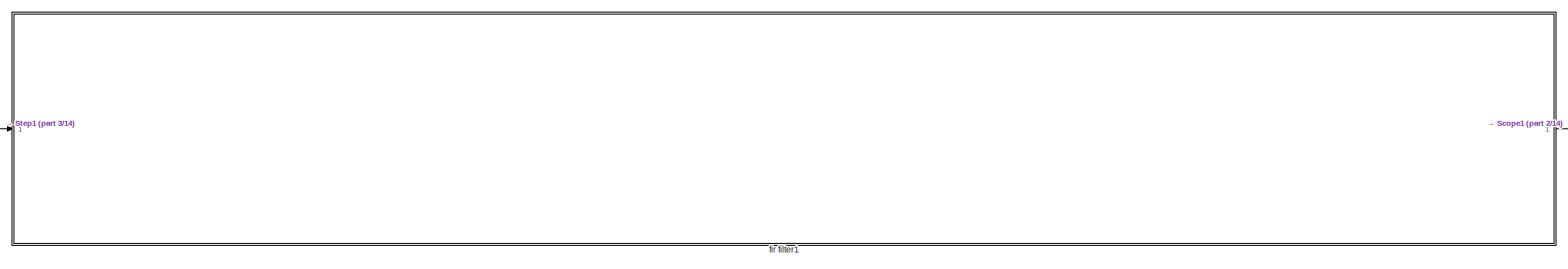
[diagram: root canvas - part 1/14, full width, top band]
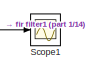
[diagram: root canvas - part 2/14, top right region]
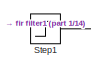
[diagram: root canvas - part 3/14, top left region]
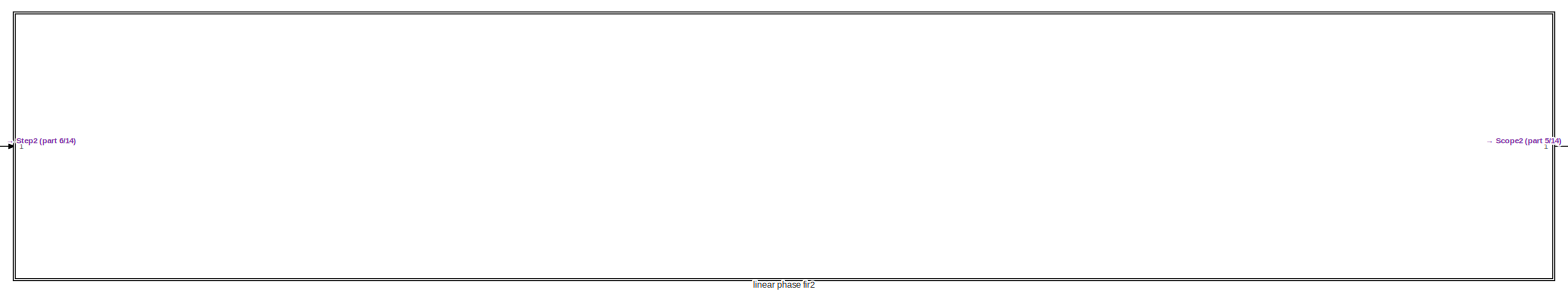
[diagram: root canvas - part 4/14, full width, top band]
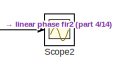
[diagram: root canvas - part 5/14, top right region]
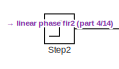
[diagram: root canvas - part 6/14, top left region]
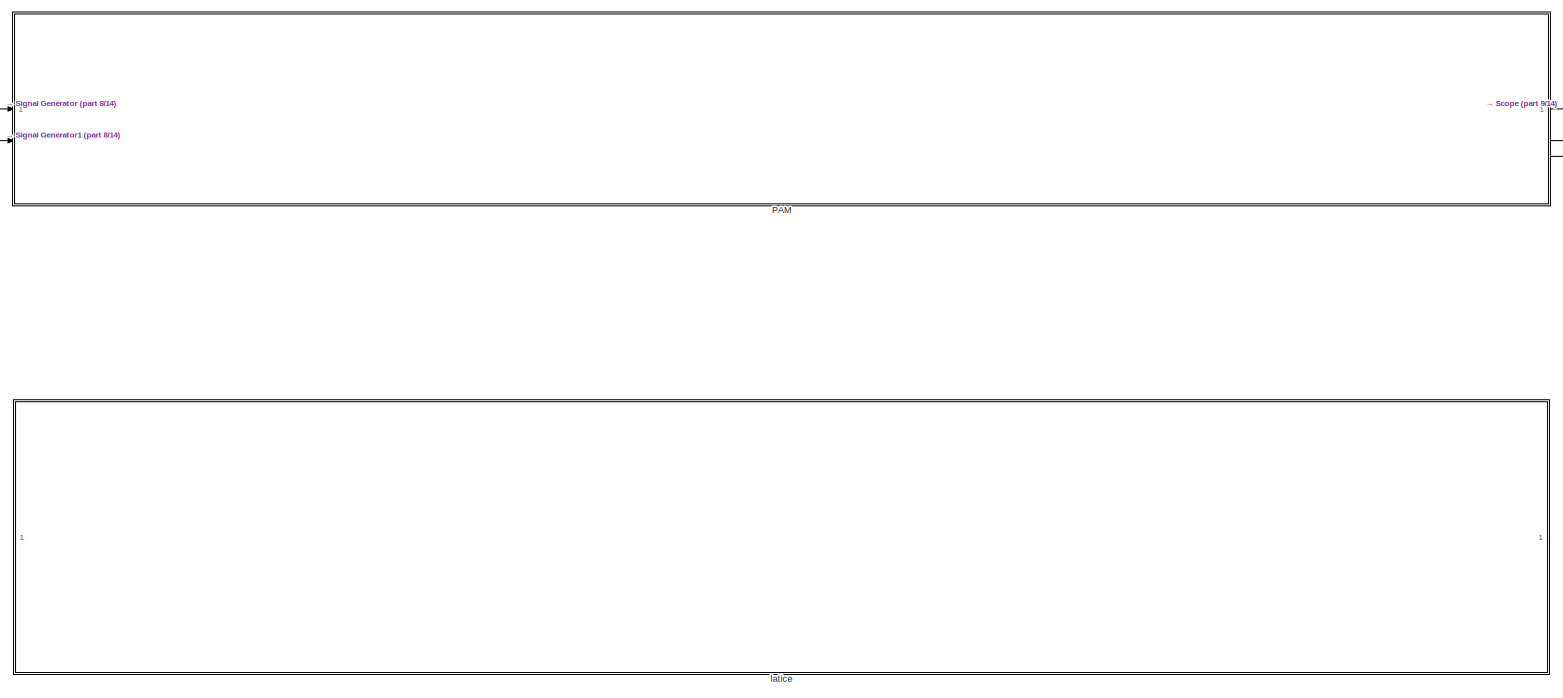
[diagram: root canvas - part 7/14, full width, top band]
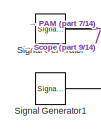
[diagram: root canvas - part 8/14, top left region]
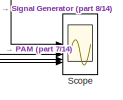
[diagram: root canvas - part 9/14, top right region]
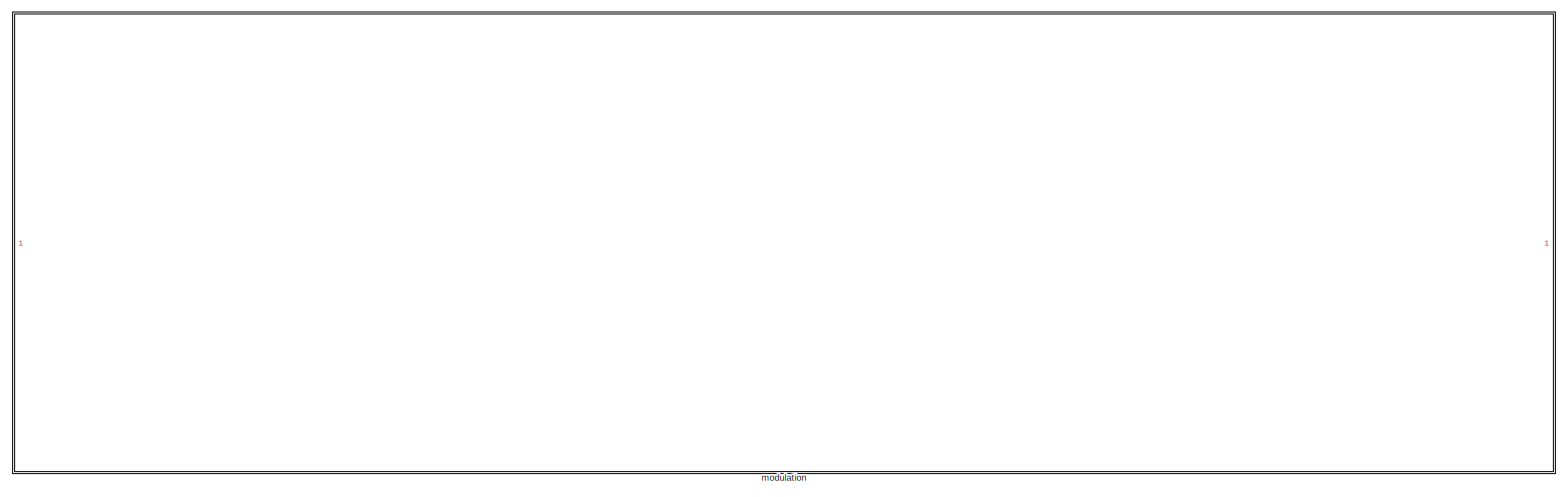
[diagram: root canvas - part 10/14, full width, middle band]
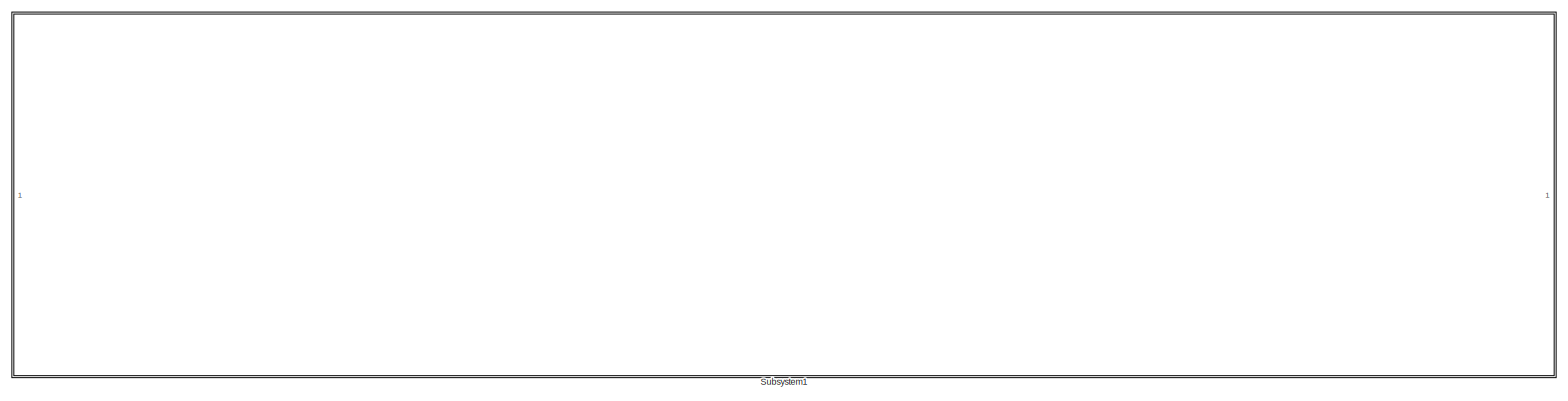
[diagram: root canvas - part 11/14, full width, middle band]
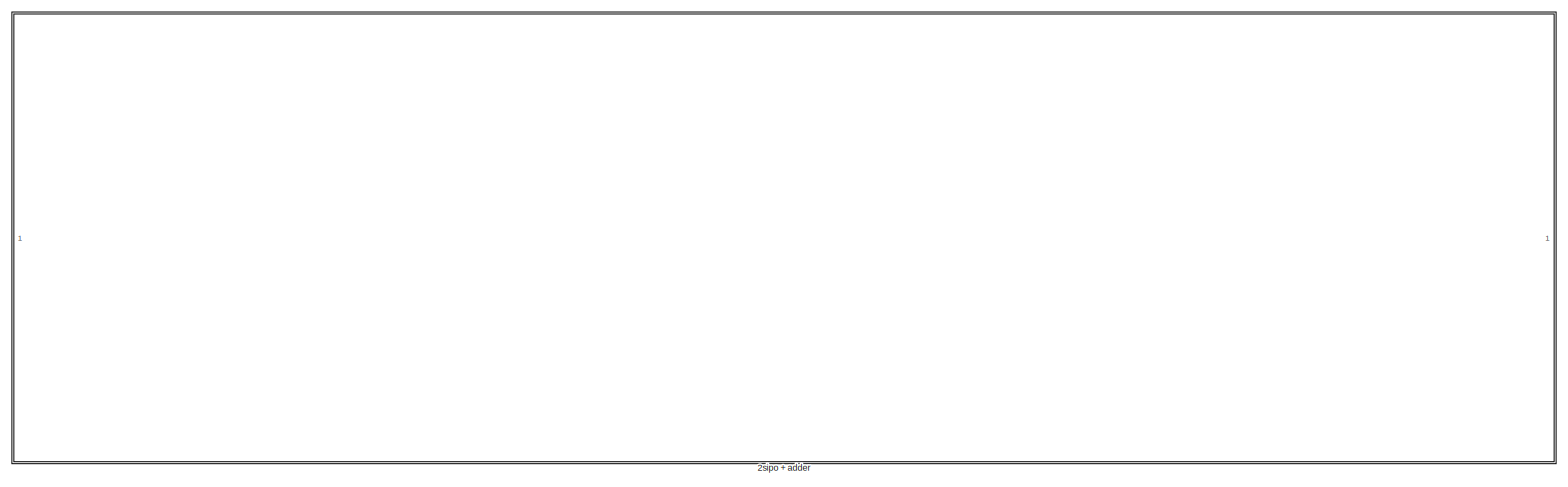
[diagram: root canvas - part 12/14, full width, middle band]
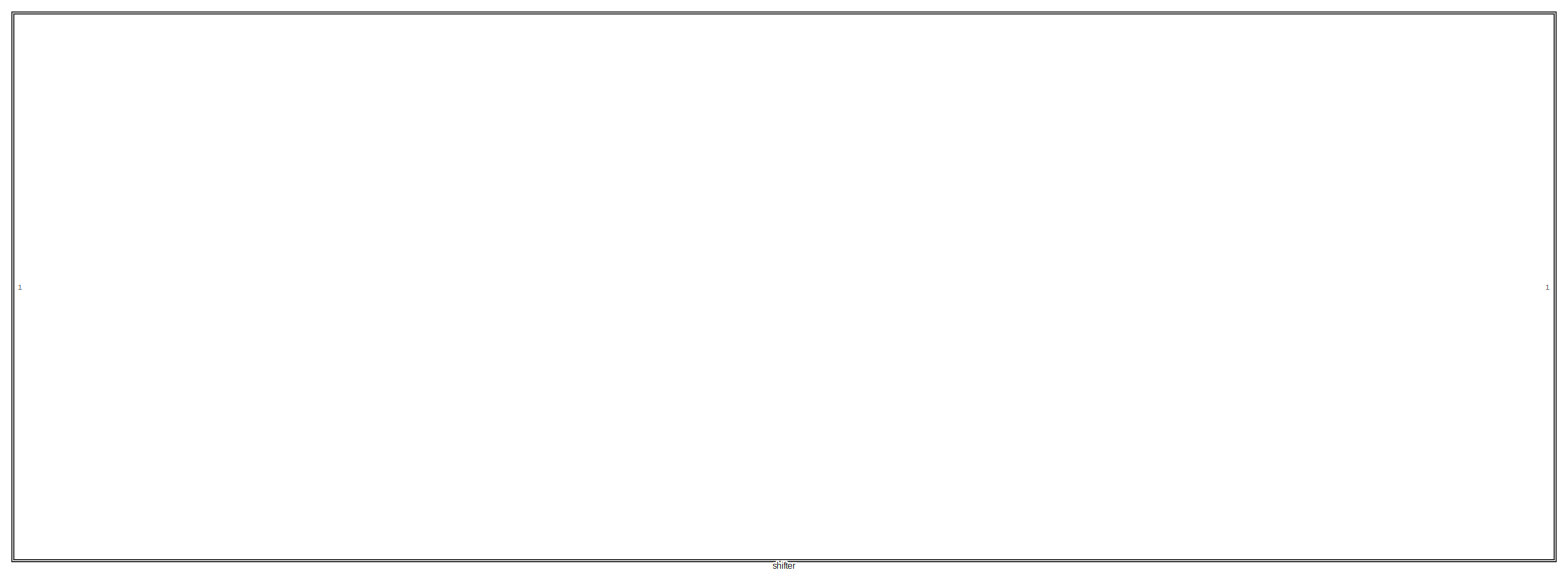
[diagram: root canvas - part 13/14, full width, bottom band]
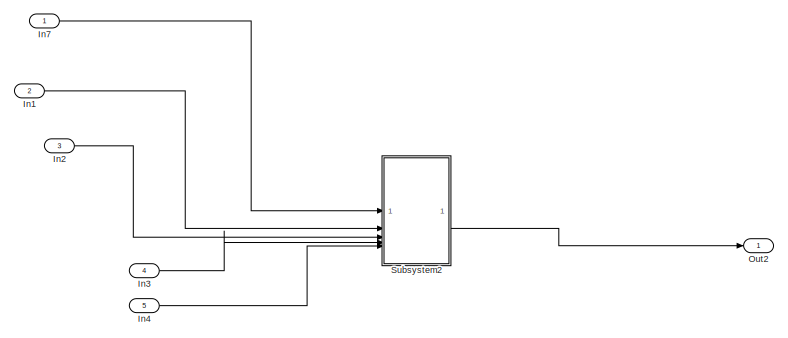
[diagram: root canvas - part 14/14, bottom right region]
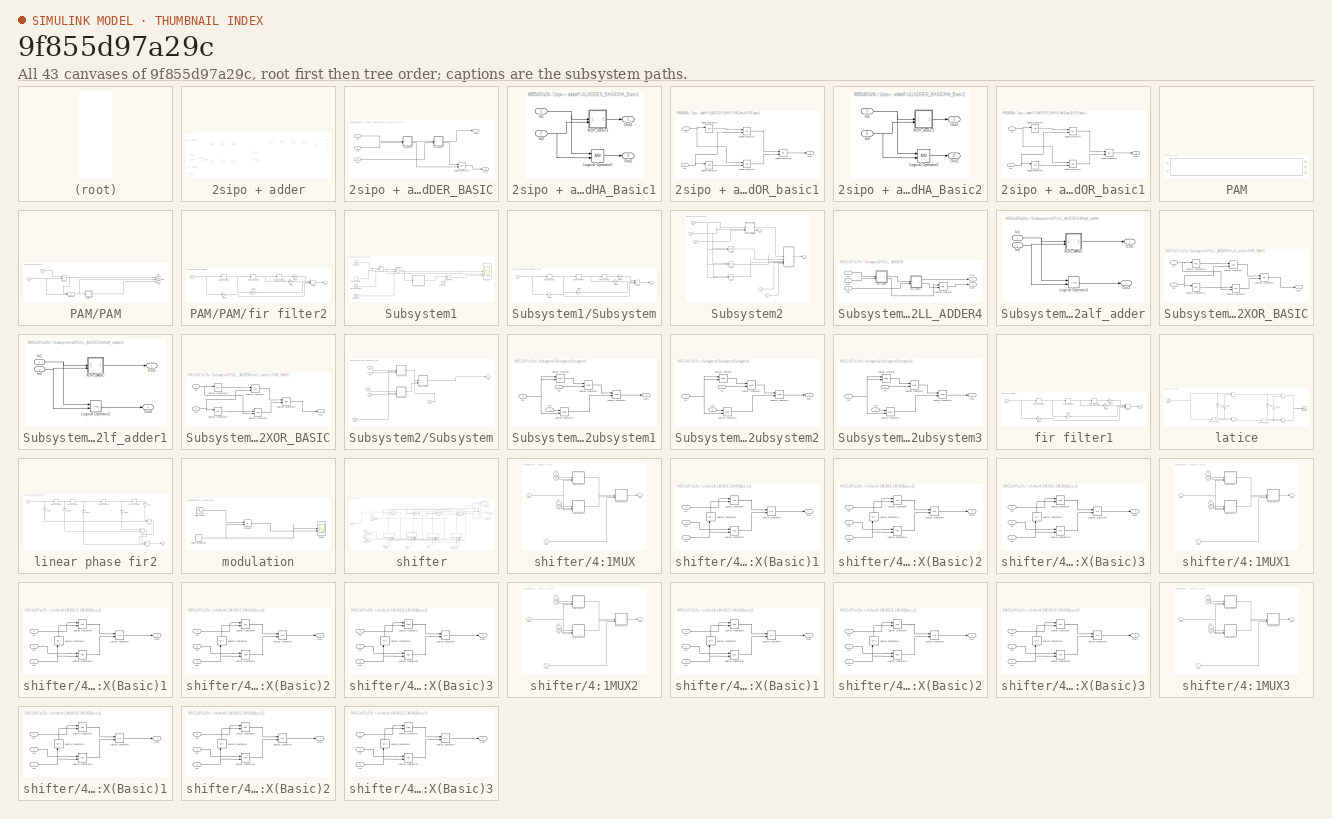
[diagram: thumbnail index - all 43 canvases of the model, root first then tree order]
MODEL slx_9f855d97a29c
KIND model
CONFIG AbsTol = auto
CONFIG EnableMultiTasking = off
CONFIG FixedStep = auto
CONFIG MaxStep = auto
CONFIG MinStep = auto
CONFIG RelTol = 1e-3
CONFIG SampleTimeConstraint = Unconstrained
CONFIG SolverName = VariableStepAuto
CONFIG StartTime = 0.0
CONFIG StopTime = 10.0
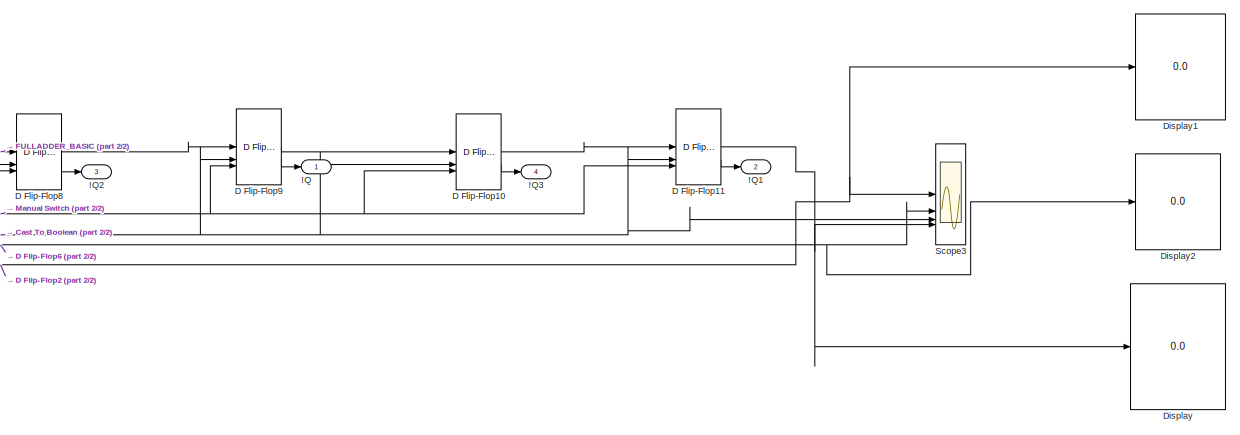
[diagram: 2sipo + adder - part 1/2, top right region]
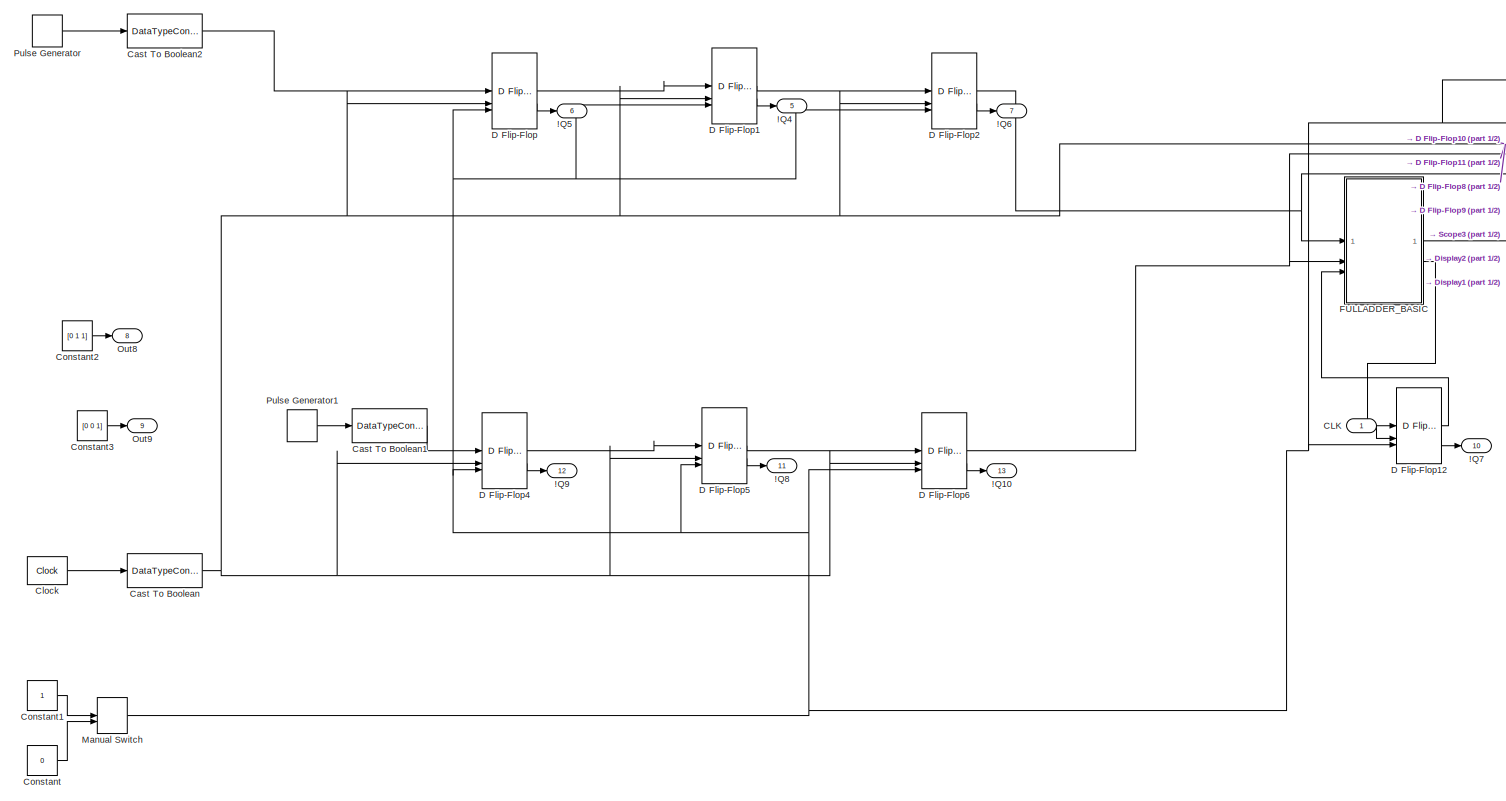
[diagram: 2sipo + adder - part 2/2, left side, full height]
BLOCK [SubSystem] 2sipo + adder
BLOCK [Outport] 2sipo + adder/!Q
BLOCK [Outport] 2sipo + adder/!Q1
  Port = 2
BLOCK [Outport] 2sipo + adder/!Q10
  Port = 13
BLOCK [Outport] 2sipo + adder/!Q2
  Port = 3
BLOCK [Outport] 2sipo + adder/!Q3
  Port = 4
BLOCK [Outport] 2sipo + adder/!Q4
  Port = 5
BLOCK [Outport] 2sipo + adder/!Q5
  Port = 6
BLOCK [Outport] 2sipo + adder/!Q6
  Port = 7
BLOCK [Outport] 2sipo + adder/!Q7
  Port = 10
BLOCK [Outport] 2sipo + adder/!Q8
  Port = 11
BLOCK [Outport] 2sipo + adder/!Q9
  Port = 12
BLOCK [Inport] 2sipo + adder/CLK
BLOCK [DataTypeConversion] 2sipo + adder/Cast To Boolean
  OutDataTypeStr = boolean
  RndMeth = Floor
  SaturateOnIntegerOverflow = off
BLOCK [DataTypeConversion] 2sipo + adder/Cast To Boolean1
  OutDataTypeStr = boolean
  RndMeth = Floor
  SaturateOnIntegerOverflow = off
BLOCK [DataTypeConversion] 2sipo + adder/Cast To Boolean2
  OutDataTypeStr = boolean
  RndMeth = Floor
  SaturateOnIntegerOverflow = off
BLOCK [Reference] 2sipo + adder/Clock  REF=simulink_extras/Flip Flops/Clock
  SourceBlock = simulink_extras/Flip Flops/Clock
  SourceType = Digital clock
BLOCK [Constant] 2sipo + adder/Constant
  OutDataTypeStr = boolean
  Value = 0
BLOCK [Constant] 2sipo + adder/Constant1
  OutDataTypeStr = boolean
BLOCK [Constant] 2sipo + adder/Constant2
  Value = [0 1 1]
BLOCK [Constant] 2sipo + adder/Constant3
  Value = [0 0 1]
BLOCK [Reference] 2sipo + adder/D Flip-Flop  REF=simulink_extras/Flip Flops/D Flip-Flop
  SourceBlock = simulink_extras/Flip Flops/D Flip-Flop
  SourceType = DFlipFlop
BLOCK [Reference] 2sipo + adder/D Flip-Flop1  REF=simulink_extras/Flip Flops/D Flip-Flop
  SourceBlock = simulink_extras/Flip Flops/D Flip-Flop
  SourceType = DFlipFlop
BLOCK [Reference] 2sipo + adder/D Flip-Flop10  REF=simulink_extras/Flip Flops/D Flip-Flop
  SourceBlock = simulink_extras/Flip Flops/D Flip-Flop
  SourceType = DFlipFlop
BLOCK [Reference] 2sipo + adder/D Flip-Flop11  REF=simulink_extras/Flip Flops/D Flip-Flop
  SourceBlock = simulink_extras/Flip Flops/D Flip-Flop
  SourceType = DFlipFlop
BLOCK [Reference] 2sipo + adder/D Flip-Flop12  REF=simulink_extras/Flip Flops/D Flip-Flop
  SourceBlock = simulink_extras/Flip Flops/D Flip-Flop
  SourceType = DFlipFlop
BLOCK [Reference] 2sipo + adder/D Flip-Flop2  REF=simulink_extras/Flip Flops/D Flip-Flop
  SourceBlock = simulink_extras/Flip Flops/D Flip-Flop
  SourceType = DFlipFlop
BLOCK [Reference] 2sipo + adder/D Flip-Flop4  REF=simulink_extras/Flip Flops/D Flip-Flop
  SourceBlock = simulink_extras/Flip Flops/D Flip-Flop
  SourceType = DFlipFlop
BLOCK [Reference] 2sipo + adder/D Flip-Flop5  REF=simulink_extras/Flip Flops/D Flip-Flop
  SourceBlock = simulink_extras/Flip Flops/D Flip-Flop
  SourceType = DFlipFlop
BLOCK [Reference] 2sipo + adder/D Flip-Flop6  REF=simulink_extras/Flip Flops/D Flip-Flop
  SourceBlock = simulink_extras/Flip Flops/D Flip-Flop
  SourceType = DFlipFlop
BLOCK [Reference] 2sipo + adder/D Flip-Flop8  REF=simulink_extras/Flip Flops/D Flip-Flop
  SourceBlock = simulink_extras/Flip Flops/D Flip-Flop
  SourceType = DFlipFlop
BLOCK [Reference] 2sipo + adder/D Flip-Flop9  REF=simulink_extras/Flip Flops/D Flip-Flop
  SourceBlock = simulink_extras/Flip Flops/D Flip-Flop
  SourceType = DFlipFlop
BLOCK [Display] 2sipo + adder/Display
  Decimation = 1
BLOCK [Display] 2sipo + adder/Display1
  Decimation = 1
BLOCK [Display] 2sipo + adder/Display2
  Decimation = 1
BLOCK [SubSystem] 2sipo + adder/FULLADDER_BASIC
BLOCK [SubSystem] 2sipo + adder/FULLADDER_BASIC/HA_Basic1
BLOCK [Inport] 2sipo + adder/FULLADDER_BASIC/HA_Basic1/In1
BLOCK [Inport] 2sipo + adder/FULLADDER_BASIC/HA_Basic1/In2
  Port = 2
BLOCK [Logic] 2sipo + adder/FULLADDER_BASIC/HA_Basic1/Logical Operator2
  AllPortsSameDT = off
  IconShape = distinctive
  OutDataTypeStr = boolean
BLOCK [Outport] 2sipo + adder/FULLADDER_BASIC/HA_Basic1/Out1
BLOCK [Outport] 2sipo + adder/FULLADDER_BASIC/HA_Basic1/Out2
  Port = 2
BLOCK [SubSystem] 2sipo + adder/FULLADDER_BASIC/HA_Basic1/XOR_basic1
BLOCK [Inport] 2sipo + adder/FULLADDER_BASIC/HA_Basic1/XOR_basic1/In1
BLOCK [Inport] 2sipo + adder/FULLADDER_BASIC/HA_Basic1/XOR_basic1/In2
  Port = 2
BLOCK [Logic] 2sipo + adder/FULLADDER_BASIC/HA_Basic1/XOR_basic1/Logical Operator1
  AllPortsSameDT = off
  IconShape = distinctive
  OutDataTypeStr = boolean
BLOCK [Logic] 2sipo + adder/FULLADDER_BASIC/HA_Basic1/XOR_basic1/Logical Operator2
  AllPortsSameDT = off
  IconShape = distinctive
  OutDataTypeStr = boolean
BLOCK [Logic] 2sipo + adder/FULLADDER_BASIC/HA_Basic1/XOR_basic1/Logical Operator3
  AllPortsSameDT = off
  IconShape = distinctive
  Operator = NOT
  OutDataTypeStr = boolean
BLOCK [Logic] 2sipo + adder/FULLADDER_BASIC/HA_Basic1/XOR_basic1/Logical Operator4
  AllPortsSameDT = off
  IconShape = distinctive
  Operator = OR
  OutDataTypeStr = boolean
BLOCK [Logic] 2sipo + adder/FULLADDER_BASIC/HA_Basic1/XOR_basic1/Logical Operator5
  AllPortsSameDT = off
  IconShape = distinctive
  Operator = NOT
  OutDataTypeStr = boolean
BLOCK [Outport] 2sipo + adder/FULLADDER_BASIC/HA_Basic1/XOR_basic1/Out1
BLOCK [SubSystem] 2sipo + adder/FULLADDER_BASIC/HA_Basic2
BLOCK [Inport] 2sipo + adder/FULLADDER_BASIC/HA_Basic2/In1
BLOCK [Inport] 2sipo + adder/FULLADDER_BASIC/HA_Basic2/In2
  Port = 2
BLOCK [Logic] 2sipo + adder/FULLADDER_BASIC/HA_Basic2/Logical Operator2
  AllPortsSameDT = off
  IconShape = distinctive
  OutDataTypeStr = boolean
BLOCK [Outport] 2sipo + adder/FULLADDER_BASIC/HA_Basic2/Out1
BLOCK [Outport] 2sipo + adder/FULLADDER_BASIC/HA_Basic2/Out2
  Port = 2
BLOCK [SubSystem] 2sipo + adder/FULLADDER_BASIC/HA_Basic2/XOR_basic1
BLOCK [Inport] 2sipo + adder/FULLADDER_BASIC/HA_Basic2/XOR_basic1/In1
BLOCK [Inport] 2sipo + adder/FULLADDER_BASIC/HA_Basic2/XOR_basic1/In2
  Port = 2
BLOCK [Logic] 2sipo + adder/FULLADDER_BASIC/HA_Basic2/XOR_basic1/Logical Operator1
  AllPortsSameDT = off
  IconShape = distinctive
  OutDataTypeStr = boolean
BLOCK [Logic] 2sipo + adder/FULLADDER_BASIC/HA_Basic2/XOR_basic1/Logical Operator2
  AllPortsSameDT = off
  IconShape = distinctive
  OutDataTypeStr = boolean
BLOCK [Logic] 2sipo + adder/FULLADDER_BASIC/HA_Basic2/XOR_basic1/Logical Operator3
  AllPortsSameDT = off
  IconShape = distinctive
  Operator = NOT
  OutDataTypeStr = boolean
BLOCK [Logic] 2sipo + adder/FULLADDER_BASIC/HA_Basic2/XOR_basic1/Logical Operator4
  AllPortsSameDT = off
  IconShape = distinctive
  Operator = OR
  OutDataTypeStr = boolean
BLOCK [Logic] 2sipo + adder/FULLADDER_BASIC/HA_Basic2/XOR_basic1/Logical Operator5
  AllPortsSameDT = off
  IconShape = distinctive
  Operator = NOT
  OutDataTypeStr = boolean
BLOCK [Outport] 2sipo + adder/FULLADDER_BASIC/HA_Basic2/XOR_basic1/Out1
BLOCK [Inport] 2sipo + adder/FULLADDER_BASIC/In1
BLOCK [Inport] 2sipo + adder/FULLADDER_BASIC/In2
  Port = 2
BLOCK [Inport] 2sipo + adder/FULLADDER_BASIC/In3
  Port = 3
BLOCK [Logic] 2sipo + adder/FULLADDER_BASIC/Logical Operator4
  AllPortsSameDT = off
  IconShape = distinctive
  Operator = OR
  OutDataTypeStr = boolean
BLOCK [Outport] 2sipo + adder/FULLADDER_BASIC/Out1
BLOCK [Outport] 2sipo + adder/FULLADDER_BASIC/Out2
  Port = 2
BLOCK [ManualSwitch] 2sipo + adder/Manual Switch
BLOCK [Outport] 2sipo + adder/Out8
  Port = 8
BLOCK [Outport] 2sipo + adder/Out9
  Port = 9
BLOCK [DiscretePulseGenerator] 2sipo + adder/Pulse Generator
  PulseType = Time based
  PulseWidth = 50
BLOCK [DiscretePulseGenerator] 2sipo + adder/Pulse Generator1
  Period = 1
  PulseType = Time based
  PulseWidth = 50
BLOCK [Scope] 2sipo + adder/Scope3
  Floating = off
  NumInputPorts = 4
  ScopeSpecificationString = Simulink.scopes.TimeScopeBlockCfg('CurrentConfiguration', extmgr.ConfigurationSet(extmgr.Configuration('Core','General UI',true),extmgr.Configuration('Core','Source UI',true),extmgr.Configuration('Sources','WiredSimulink',true,'DataLoggingVariableName','ScopeData5'),extmgr.Configuration('Visuals','Time Domain',true,'SerializedDisplays',{struct('MinYLimReal','-0.125','MaxYLimReal','1.125','YLabelRe...<+3809ch>
BLOCK [Inport] In1
  Port = 2
BLOCK [Inport] In2
  Port = 3
BLOCK [Inport] In3
  Port = 4
BLOCK [Inport] In4
  Port = 5
BLOCK [Inport] In7
BLOCK [Outport] Out2
BLOCK [SubSystem] PAM
  LabelModeActiveChoice = PAM
  Variant = on
  VariantControl = PAM
  VariantControlMode = label
BLOCK [Inport] PAM/In1
BLOCK [Inport] PAM/In2
  Port = 2
BLOCK [Outport] PAM/Out1
BLOCK [Outport] PAM/Out2
  Port = 2
BLOCK [Outport] PAM/Out3
  Port = 3
BLOCK [SubSystem] PAM/PAM
  VariantControl = PAM
BLOCK [Inport] PAM/PAM/In1
BLOCK [Inport] PAM/PAM/In2
  Port = 2
BLOCK [Outport] PAM/PAM/Out1
BLOCK [Outport] PAM/PAM/Out2
  Port = 2
BLOCK [Outport] PAM/PAM/Out3
  Port = 3
BLOCK [Product] PAM/PAM/Product
BLOCK [Product] PAM/PAM/Product1
BLOCK [SubSystem] PAM/PAM/fir filter2
BLOCK [Sum] PAM/PAM/fir filter2/Add3
  IconShape = rectangular
  Inputs = ++++
BLOCK [Delay] PAM/PAM/fir filter2/Delay One Step3
  DelayLength = 1
  InputPortMap = u0
BLOCK [Delay] PAM/PAM/fir filter2/Delay One Step4
  DelayLength = 1
  InputPortMap = u0
BLOCK [Delay] PAM/PAM/fir filter2/Delay One Step5
  DelayLength = 1
  InputPortMap = u0
BLOCK [Gain] PAM/PAM/fir filter2/Gain4
BLOCK [Gain] PAM/PAM/fir filter2/Gain5
  Gain = 1/2
BLOCK [Gain] PAM/PAM/fir filter2/Gain6
  Gain = 1/4
BLOCK [Gain] PAM/PAM/fir filter2/Gain7
  Gain = 1/8
BLOCK [Inport] PAM/PAM/fir filter2/In1
BLOCK [Outport] PAM/PAM/fir filter2/Out1
BLOCK [Scope] Scope
  Floating = off
  NumInputPorts = 4
  ScopeSpecificationString = Simulink.scopes.TimeScopeBlockCfg('CurrentConfiguration', extmgr.ConfigurationSet(extmgr.Configuration('Core','General UI',true),extmgr.Configuration('Core','Source UI',true),extmgr.Configuration('Sources','WiredSimulink',true,'DataLoggingVariableName','ScopeData2'),extmgr.Configuration('Visuals','Time Domain',true,'SerializedDisplays',{struct('MinYLimReal','-1.24999','MaxYLimReal','1.2499','YLabe...<+3813ch>
BLOCK [Scope] Scope1
  Floating = off
  NumInputPorts = 1
  ScopeSpecificationString = Simulink.scopes.TimeScopeBlockCfg('CurrentConfiguration', extmgr.ConfigurationSet(extmgr.Configuration('Core','General UI',true),extmgr.Configuration('Core','Source UI',true),extmgr.Configuration('Sources','WiredSimulink',true,'DataLoggingVariableName','ScopeData1'),extmgr.Configuration('Visuals','Time Domain',true,'SerializedDisplays',{struct('MinYLimReal','-0.23437','MaxYLimReal','2.10938','YLab...<+1492ch>
BLOCK [Scope] Scope2
  Floating = off
  NumInputPorts = 1
  ScopeSpecificationString = Simulink.scopes.TimeScopeBlockCfg('CurrentConfiguration', extmgr.ConfigurationSet(extmgr.Configuration('Core','General UI',true),extmgr.Configuration('Core','Source UI',true),extmgr.Configuration('Sources','WiredSimulink',true),extmgr.Configuration('Visuals','Time Domain',true,'SerializedDisplays',{struct('MinYLimReal','-0.29687','MaxYLimReal','2.67188','YLabelReal','','MinYLimMag','0.00000','MaxY...<+1457ch>
BLOCK [SignalGenerator] Signal Generator
  Units = rad/sec
BLOCK [SignalGenerator] Signal Generator1
  Frequency = 20
  Units = rad/sec
  WaveForm = square
BLOCK [Step] Step1
  SampleTime = 0
BLOCK [Step] Step2
  SampleTime = 0
BLOCK [SubSystem] Subsystem1
BLOCK [Constant] Subsystem1/Constant
  Value = 0.25
BLOCK [RelationalOperator] Subsystem1/GreaterThan
  InputSameDT = off
  Operator = >
  OutDataTypeStr = boolean
  RndMeth = Simplest
BLOCK [Product] Subsystem1/Product
BLOCK [Product] Subsystem1/Product1
BLOCK [DiscretePulseGenerator] Subsystem1/Pulse Generator
  Period = 1
  PulseType = Time based
  PulseWidth = 50
BLOCK [Scope] Subsystem1/Scope3
  Floating = off
  NumInputPorts = 3
  ScopeSpecificationString = Simulink.scopes.TimeScopeBlockCfg('CurrentConfiguration', extmgr.ConfigurationSet(extmgr.Configuration('Core','General UI',true),extmgr.Configuration('Core','Source UI',true),extmgr.Configuration('Sources','WiredSimulink',true,'DataLoggingVariableName','ScopeData4'),extmgr.Configuration('Visuals','Time Domain',true,'SerializedDisplays',{struct('MinYLimReal','-0.125','MaxYLimReal','1.125','YLabelRe...<+3015ch>
BLOCK [SignalGenerator] Subsystem1/Signal Generator2
  Units = rad/sec
BLOCK [Sin] Subsystem1/Sine Wave
  Frequency = 20
  SampleTime = 0
BLOCK [Sin] Subsystem1/Sine Wave1
  Frequency = 20
  SampleTime = 0
BLOCK [SubSystem] Subsystem1/Subsystem
BLOCK [Sum] Subsystem1/Subsystem/Add3
  IconShape = rectangular
  Inputs = ++++
BLOCK [Delay] Subsystem1/Subsystem/Delay One Step3
  DelayLength = 1
  InputPortMap = u0
BLOCK [Delay] Subsystem1/Subsystem/Delay One Step4
  DelayLength = 1
  InputPortMap = u0
BLOCK [Delay] Subsystem1/Subsystem/Delay One Step5
  DelayLength = 1
  InputPortMap = u0
BLOCK [Gain] Subsystem1/Subsystem/Gain4
BLOCK [Gain] Subsystem1/Subsystem/Gain5
  Gain = 1/2
BLOCK [Gain] Subsystem1/Subsystem/Gain6
  Gain = 1/4
BLOCK [Gain] Subsystem1/Subsystem/Gain7
  Gain = 1/8
BLOCK [Inport] Subsystem1/Subsystem/In1
BLOCK [Outport] Subsystem1/Subsystem/Out1
BLOCK [SubSystem] Subsystem2
BLOCK [Logic] Subsystem2/AND
  AllPortsSameDT = off
  IconShape = distinctive
  OutDataTypeStr = boolean
BLOCK [SubSystem] Subsystem2/FULL_ADDER4
BLOCK [Inport] Subsystem2/FULL_ADDER4/In1
BLOCK [Inport] Subsystem2/FULL_ADDER4/In2
  Port = 2
BLOCK [Inport] Subsystem2/FULL_ADDER4/In3
  Port = 3
BLOCK [Logic] Subsystem2/FULL_ADDER4/Logical Operator
  AllPortsSameDT = off
  Operator = OR
  OutDataTypeStr = boolean
BLOCK [Outport] Subsystem2/FULL_ADDER4/Out1
BLOCK [Outport] Subsystem2/FULL_ADDER4/Out2
  Port = 2
BLOCK [SubSystem] Subsystem2/FULL_ADDER4/half_adder
BLOCK [Inport] Subsystem2/FULL_ADDER4/half_adder/In1
BLOCK [Inport] Subsystem2/FULL_ADDER4/half_adder/In2
  Port = 2
BLOCK [Logic] Subsystem2/FULL_ADDER4/half_adder/Logical Operator1
  AllPortsSameDT = off
  OutDataTypeStr = boolean
BLOCK [Outport] Subsystem2/FULL_ADDER4/half_adder/Out1
BLOCK [Outport] Subsystem2/FULL_ADDER4/half_adder/Out2
  Port = 2
BLOCK [SubSystem] Subsystem2/FULL_ADDER4/half_adder/XOR_BASIC
BLOCK [Inport] Subsystem2/FULL_ADDER4/half_adder/XOR_BASIC/In1
BLOCK [Inport] Subsystem2/FULL_ADDER4/half_adder/XOR_BASIC/In2
  Port = 2
BLOCK [Logic] Subsystem2/FULL_ADDER4/half_adder/XOR_BASIC/Logical Operator10
  AllPortsSameDT = off
  IconShape = distinctive
  Operator = NOT
  OutDataTypeStr = boolean
BLOCK [Logic] Subsystem2/FULL_ADDER4/half_adder/XOR_BASIC/Logical Operator11
  AllPortsSameDT = off
  IconShape = distinctive
  Operator = NOT
  OutDataTypeStr = boolean
BLOCK [Logic] Subsystem2/FULL_ADDER4/half_adder/XOR_BASIC/Logical Operator7
  AllPortsSameDT = off
  IconShape = distinctive
  OutDataTypeStr = boolean
BLOCK [Logic] Subsystem2/FULL_ADDER4/half_adder/XOR_BASIC/Logical Operator8
  AllPortsSameDT = off
  IconShape = distinctive
  OutDataTypeStr = boolean
BLOCK [Logic] Subsystem2/FULL_ADDER4/half_adder/XOR_BASIC/Logical Operator9
  AllPortsSameDT = off
  IconShape = distinctive
  Operator = OR
  OutDataTypeStr = boolean
BLOCK [Outport] Subsystem2/FULL_ADDER4/half_adder/XOR_BASIC/Out1
BLOCK [SubSystem] Subsystem2/FULL_ADDER4/half_adder1
BLOCK [Inport] Subsystem2/FULL_ADDER4/half_adder1/In1
BLOCK [Inport] Subsystem2/FULL_ADDER4/half_adder1/In2
  Port = 2
BLOCK [Logic] Subsystem2/FULL_ADDER4/half_adder1/Logical Operator1
  AllPortsSameDT = off
  OutDataTypeStr = boolean
BLOCK [Outport] Subsystem2/FULL_ADDER4/half_adder1/Out1
BLOCK [Outport] Subsystem2/FULL_ADDER4/half_adder1/Out2
  Port = 2
BLOCK [SubSystem] Subsystem2/FULL_ADDER4/half_adder1/XOR_BASIC
BLOCK [Inport] Subsystem2/FULL_ADDER4/half_adder1/XOR_BASIC/In1
BLOCK [Inport] Subsystem2/FULL_ADDER4/half_adder1/XOR_BASIC/In2
  Port = 2
BLOCK [Logic] Subsystem2/FULL_ADDER4/half_adder1/XOR_BASIC/Logical Operator10
  AllPortsSameDT = off
  IconShape = distinctive
  Operator = NOT
  OutDataTypeStr = boolean
BLOCK [Logic] Subsystem2/FULL_ADDER4/half_adder1/XOR_BASIC/Logical Operator11
  AllPortsSameDT = off
  IconShape = distinctive
  Operator = NOT
  OutDataTypeStr = boolean
BLOCK [Logic] Subsystem2/FULL_ADDER4/half_adder1/XOR_BASIC/Logical Operator7
  AllPortsSameDT = off
  IconShape = distinctive
  OutDataTypeStr = boolean
BLOCK [Logic] Subsystem2/FULL_ADDER4/half_adder1/XOR_BASIC/Logical Operator8
  AllPortsSameDT = off
  IconShape = distinctive
  OutDataTypeStr = boolean
BLOCK [Logic] Subsystem2/FULL_ADDER4/half_adder1/XOR_BASIC/Logical Operator9
  AllPortsSameDT = off
  IconShape = distinctive
  Operator = OR
  OutDataTypeStr = boolean
BLOCK [Outport] Subsystem2/FULL_ADDER4/half_adder1/XOR_BASIC/Out1
BLOCK [Inport] Subsystem2/In1
  Port = 2
BLOCK [Inport] Subsystem2/In2
  Port = 3
BLOCK [Inport] Subsystem2/In3
  Port = 4
BLOCK [Inport] Subsystem2/In4
  Port = 5
BLOCK [Inport] Subsystem2/In7
BLOCK [Logic] Subsystem2/NOR
  AllPortsSameDT = off
  IconShape = distinctive
  Operator = NOR
  OutDataTypeStr = boolean
BLOCK [Outport] Subsystem2/Out1
BLOCK [Outport] Subsystem2/Out2
  Port = 2
BLOCK [SubSystem] Subsystem2/Subsystem
BLOCK [Inport] Subsystem2/Subsystem/In1
BLOCK [Inport] Subsystem2/Subsystem/In2
  Port = 2
BLOCK [Inport] Subsystem2/Subsystem/In3
  Port = 3
BLOCK [Inport] Subsystem2/Subsystem/In4
  Port = 4
BLOCK [Inport] Subsystem2/Subsystem/In5
  Port = 5
BLOCK [Inport] Subsystem2/Subsystem/In6
  Port = 6
BLOCK [Outport] Subsystem2/Subsystem/Out1
BLOCK [SubSystem] Subsystem2/Subsystem/Subsystem1
BLOCK [Inport] Subsystem2/Subsystem/Subsystem1/In1
BLOCK [Inport] Subsystem2/Subsystem/Subsystem1/In2
  Port = 2
BLOCK [Inport] Subsystem2/Subsystem/Subsystem1/In3
  Port = 3
BLOCK [Logic] Subsystem2/Subsystem/Subsystem1/Logical Operator
  AllPortsSameDT = off
  Operator = NAND
  OutDataTypeStr = boolean
BLOCK [Logic] Subsystem2/Subsystem/Subsystem1/Logical Operator1
  AllPortsSameDT = off
  Operator = NAND
  OutDataTypeStr = boolean
BLOCK [Logic] Subsystem2/Subsystem/Subsystem1/Logical Operator2
  AllPortsSameDT = off
  Operator = NAND
  OutDataTypeStr = boolean
BLOCK [Logic] Subsystem2/Subsystem/Subsystem1/Logical Operator3
  AllPortsSameDT = off
  Operator = NAND
  OutDataTypeStr = boolean
BLOCK [Outport] Subsystem2/Subsystem/Subsystem1/Out1
BLOCK [SubSystem] Subsystem2/Subsystem/Subsystem2
BLOCK [Inport] Subsystem2/Subsystem/Subsystem2/In1
BLOCK [Inport] Subsystem2/Subsystem/Subsystem2/In2
  Port = 2
BLOCK [Inport] Subsystem2/Subsystem/Subsystem2/In3
  Port = 3
BLOCK [Logic] Subsystem2/Subsystem/Subsystem2/Logical Operator
  AllPortsSameDT = off
  Operator = NAND
  OutDataTypeStr = boolean
BLOCK [Logic] Subsystem2/Subsystem/Subsystem2/Logical Operator1
  AllPortsSameDT = off
  Operator = NAND
  OutDataTypeStr = boolean
BLOCK [Logic] Subsystem2/Subsystem/Subsystem2/Logical Operator2
  AllPortsSameDT = off
  Operator = NAND
  OutDataTypeStr = boolean
BLOCK [Logic] Subsystem2/Subsystem/Subsystem2/Logical Operator3
  AllPortsSameDT = off
  Operator = NAND
  OutDataTypeStr = boolean
BLOCK [Outport] Subsystem2/Subsystem/Subsystem2/Out1
BLOCK [SubSystem] Subsystem2/Subsystem/Subsystem3
BLOCK [Inport] Subsystem2/Subsystem/Subsystem3/In1
BLOCK [Inport] Subsystem2/Subsystem/Subsystem3/In2
  Port = 2
BLOCK [Inport] Subsystem2/Subsystem/Subsystem3/In3
  Port = 3
BLOCK [Logic] Subsystem2/Subsystem/Subsystem3/Logical Operator
  AllPortsSameDT = off
  Operator = NAND
  OutDataTypeStr = boolean
BLOCK [Logic] Subsystem2/Subsystem/Subsystem3/Logical Operator1
  AllPortsSameDT = off
  Operator = NAND
  OutDataTypeStr = boolean
BLOCK [Logic] Subsystem2/Subsystem/Subsystem3/Logical Operator2
  AllPortsSameDT = off
  Operator = NAND
  OutDataTypeStr = boolean
BLOCK [Logic] Subsystem2/Subsystem/Subsystem3/Logical Operator3
  AllPortsSameDT = off
  Operator = NAND
  OutDataTypeStr = boolean
BLOCK [Outport] Subsystem2/Subsystem/Subsystem3/Out1
BLOCK [Logic] Subsystem2/XOR
  AllPortsSameDT = off
  IconShape = distinctive
  Operator = XOR
  OutDataTypeStr = boolean
BLOCK [SubSystem] fir filter1
BLOCK [Sum] fir filter1/Add3
  IconShape = rectangular
  Inputs = ++++
BLOCK [Delay] fir filter1/Delay One Step3
  DelayLength = 1
  InputPortMap = u0
BLOCK [Delay] fir filter1/Delay One Step4
  DelayLength = 1
  InputPortMap = u0
BLOCK [Delay] fir filter1/Delay One Step5
  DelayLength = 1
  InputPortMap = u0
BLOCK [Gain] fir filter1/Gain4
BLOCK [Gain] fir filter1/Gain5
  Gain = 1/2
BLOCK [Gain] fir filter1/Gain6
  Gain = 1/4
BLOCK [Gain] fir filter1/Gain7
  Gain = 1/8
BLOCK [Inport] fir filter1/In1
BLOCK [Outport] fir filter1/Out1
BLOCK [SubSystem] latice
BLOCK [Sum] latice/Add
  IconShape = rectangular
BLOCK [Sum] latice/Add1
  IconShape = rectangular
BLOCK [Sum] latice/Add2
  IconShape = rectangular
BLOCK [Sum] latice/Add3
  IconShape = rectangular
BLOCK [Delay] latice/Delay One Step1
  DelayLength = 1
  InputPortMap = u0
BLOCK [Delay] latice/Delay One Step3
  DelayLength = 1
  InputPortMap = u0
BLOCK [Gain] latice/Gain
  Gain = 3/2
  NameLocation = left
BLOCK [Gain] latice/Gain1
  Gain = 3/2
  NameLocation = left
BLOCK [Gain] latice/Gain2
  Gain = 1/3
  NameLocation = left
BLOCK [Gain] latice/Gain3
  Gain = 1/3
  NameLocation = left
BLOCK [Scope] latice/Scope3
  Floating = off
  NumInputPorts = 2
  ScopeSpecificationString = Simulink.scopes.TimeScopeBlockCfg('CurrentConfiguration', extmgr.ConfigurationSet(extmgr.Configuration('Core','General UI',true),extmgr.Configuration('Core','Source UI',true),extmgr.Configuration('Sources','WiredSimulink',true,'DataLoggingVariableName','ScopeData3'),extmgr.Configuration('Visuals','Time Domain',true,'SerializedDisplays',{struct('MinYLimReal','-0.41667','MaxYLimReal','3.75','YLabelR...<+2170ch>
BLOCK [Step] latice/Step3
  SampleTime = 0
BLOCK [SubSystem] linear phase fir2
BLOCK [Sum] linear phase fir2/Add1
  IconShape = rectangular
BLOCK [Sum] linear phase fir2/Add2
  IconShape = rectangular
  Inputs = +++
BLOCK [Sum] linear phase fir2/Add3
  IconShape = rectangular
BLOCK [Delay] linear phase fir2/Delay One Step1
  DelayLength = 1
  InputPortMap = u0
BLOCK [Delay] linear phase fir2/Delay One Step3
  DelayLength = 1
  InputPortMap = u0
BLOCK [Delay] linear phase fir2/Delay One Step4
  DelayLength = 1
  InputPortMap = u0
BLOCK [Delay] linear phase fir2/Delay One Step5
  DelayLength = 1
  InputPortMap = u0
BLOCK [Gain] linear phase fir2/Gain1
  NameLocation = left
BLOCK [Gain] linear phase fir2/Gain4
  NameLocation = left
BLOCK [Gain] linear phase fir2/Gain5
  Gain = 1/4
  NameLocation = left
BLOCK [Gain] linear phase fir2/Gain6
  Gain = -1/8
  NameLocation = left
BLOCK [Gain] linear phase fir2/Gain7
  Gain = 1/4
  NameLocation = left
BLOCK [Inport] linear phase fir2/In1
BLOCK [Outport] linear phase fir2/Out1
BLOCK [SubSystem] modulation
BLOCK [Product] modulation/Product
BLOCK [DiscretePulseGenerator] modulation/Pulse Generator
  Period = 1
  PulseType = Time based
  PulseWidth = 50
BLOCK [Scope] modulation/Scope3
  Floating = off
  NumInputPorts = 4
  ScopeSpecificationString = Simulink.scopes.TimeScopeBlockCfg('CurrentConfiguration', extmgr.ConfigurationSet(extmgr.Configuration('Core','General UI',true),extmgr.Configuration('Core','Source UI',true),extmgr.Configuration('Sources','WiredSimulink',true,'DataLoggingVariableName','ScopeData3'),extmgr.Configuration('Visuals','Time Domain',true,'SerializedDisplays',{struct('MinYLimReal','-0.125','MaxYLimReal','1.125','YLabelRe...<+4591ch>
BLOCK [Sin] modulation/Sine Wave
  Frequency = 50
  SampleTime = 0
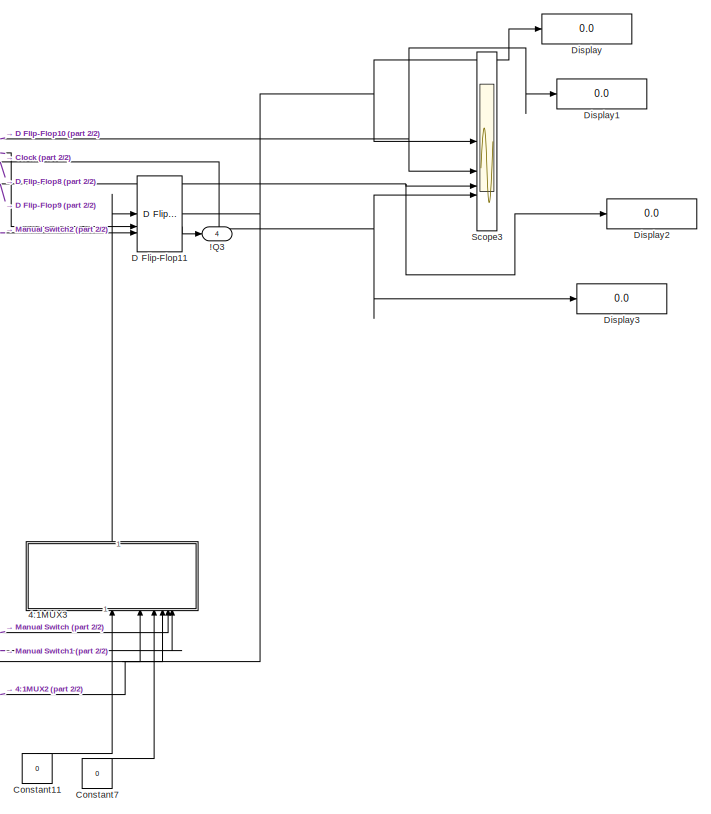
[diagram: shifter - part 1/2, right side, full height]
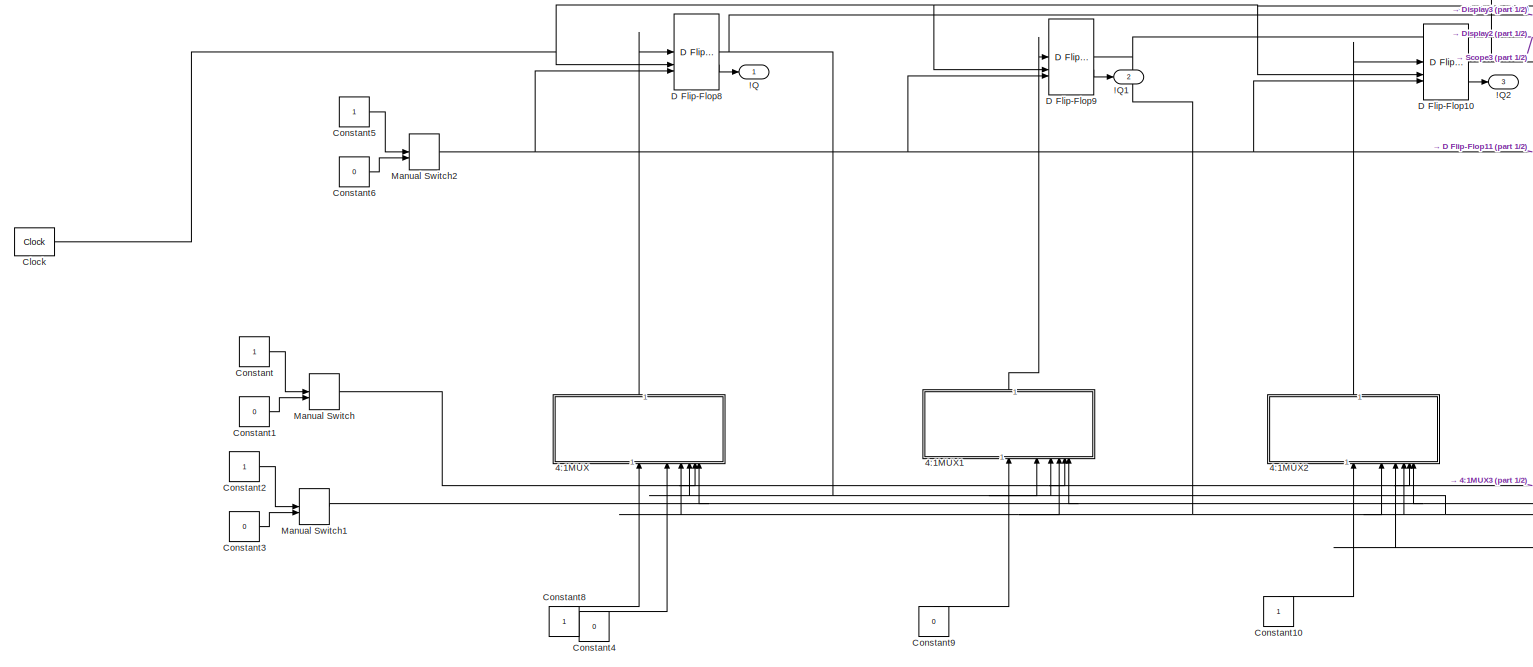
[diagram: shifter - part 2/2, left side, full height]
BLOCK [SubSystem] shifter
BLOCK [Outport] shifter/!Q
BLOCK [Outport] shifter/!Q1
  Port = 2
BLOCK [Outport] shifter/!Q2
  Port = 3
BLOCK [Outport] shifter/!Q3
  Port = 4
BLOCK [SubSystem] shifter/4:1MUX
  NameLocation = right
BLOCK [SubSystem] shifter/4:1MUX/2:1MUX(Basic)1
BLOCK [Inport] shifter/4:1MUX/2:1MUX(Basic)1/In1
BLOCK [Inport] shifter/4:1MUX/2:1MUX(Basic)1/In2
  Port = 2
BLOCK [Inport] shifter/4:1MUX/2:1MUX(Basic)1/In3
  Port = 3
BLOCK [Logic] shifter/4:1MUX/2:1MUX(Basic)1/Logical Operator10
  AllPortsSameDT = off
  IconShape = distinctive
  OutDataTypeStr = boolean
BLOCK [Logic] shifter/4:1MUX/2:1MUX(Basic)1/Logical Operator11
  AllPortsSameDT = off
  IconShape = distinctive
  NameLocation = right
  Operator = NOT
  OutDataTypeStr = boolean
BLOCK [Logic] shifter/4:1MUX/2:1MUX(Basic)1/Logical Operator8
  AllPortsSameDT = off
  IconShape = distinctive
  OutDataTypeStr = boolean
BLOCK [Logic] shifter/4:1MUX/2:1MUX(Basic)1/Logical Operator9
  AllPortsSameDT = off
  IconShape = distinctive
  Operator = OR
  OutDataTypeStr = boolean
BLOCK [Outport] shifter/4:1MUX/2:1MUX(Basic)1/Out1
BLOCK [SubSystem] shifter/4:1MUX/2:1MUX(Basic)2
BLOCK [Inport] shifter/4:1MUX/2:1MUX(Basic)2/In1
BLOCK [Inport] shifter/4:1MUX/2:1MUX(Basic)2/In2
  Port = 2
BLOCK [Inport] shifter/4:1MUX/2:1MUX(Basic)2/In3
  Port = 3
BLOCK [Logic] shifter/4:1MUX/2:1MUX(Basic)2/Logical Operator10
  AllPortsSameDT = off
  IconShape = distinctive
  OutDataTypeStr = boolean
BLOCK [Logic] shifter/4:1MUX/2:1MUX(Basic)2/Logical Operator11
  AllPortsSameDT = off
  IconShape = distinctive
  NameLocation = right
  Operator = NOT
  OutDataTypeStr = boolean
BLOCK [Logic] shifter/4:1MUX/2:1MUX(Basic)2/Logical Operator8
  AllPortsSameDT = off
  IconShape = distinctive
  OutDataTypeStr = boolean
BLOCK [Logic] shifter/4:1MUX/2:1MUX(Basic)2/Logical Operator9
  AllPortsSameDT = off
  IconShape = distinctive
  Operator = OR
  OutDataTypeStr = boolean
BLOCK [Outport] shifter/4:1MUX/2:1MUX(Basic)2/Out1
BLOCK [SubSystem] shifter/4:1MUX/2:1MUX(Basic)3
BLOCK [Inport] shifter/4:1MUX/2:1MUX(Basic)3/In1
BLOCK [Inport] shifter/4:1MUX/2:1MUX(Basic)3/In2
  Port = 2
BLOCK [Inport] shifter/4:1MUX/2:1MUX(Basic)3/In3
  Port = 3
BLOCK [Logic] shifter/4:1MUX/2:1MUX(Basic)3/Logical Operator10
  AllPortsSameDT = off
  IconShape = distinctive
  OutDataTypeStr = boolean
BLOCK [Logic] shifter/4:1MUX/2:1MUX(Basic)3/Logical Operator11
  AllPortsSameDT = off
  IconShape = distinctive
  NameLocation = right
  Operator = NOT
  OutDataTypeStr = boolean
BLOCK [Logic] shifter/4:1MUX/2:1MUX(Basic)3/Logical Operator8
  AllPortsSameDT = off
  IconShape = distinctive
  OutDataTypeStr = boolean
BLOCK [Logic] shifter/4:1MUX/2:1MUX(Basic)3/Logical Operator9
  AllPortsSameDT = off
  IconShape = distinctive
  Operator = OR
  OutDataTypeStr = boolean
BLOCK [Outport] shifter/4:1MUX/2:1MUX(Basic)3/Out1
BLOCK [Inport] shifter/4:1MUX/In15
BLOCK [Inport] shifter/4:1MUX/In16
  Port = 2
BLOCK [Inport] shifter/4:1MUX/In17
  Port = 3
BLOCK [Inport] shifter/4:1MUX/In18
  Port = 4
BLOCK [Inport] shifter/4:1MUX/In19
  Port = 5
BLOCK [Inport] shifter/4:1MUX/In20
  Port = 6
BLOCK [Outport] shifter/4:1MUX/Out7
BLOCK [SubSystem] shifter/4:1MUX1
  NameLocation = right
BLOCK [SubSystem] shifter/4:1MUX1/2:1MUX(Basic)1
BLOCK [Inport] shifter/4:1MUX1/2:1MUX(Basic)1/In1
BLOCK [Inport] shifter/4:1MUX1/2:1MUX(Basic)1/In2
  Port = 2
BLOCK [Inport] shifter/4:1MUX1/2:1MUX(Basic)1/In3
  Port = 3
BLOCK [Logic] shifter/4:1MUX1/2:1MUX(Basic)1/Logical Operator10
  AllPortsSameDT = off
  IconShape = distinctive
  OutDataTypeStr = boolean
BLOCK [Logic] shifter/4:1MUX1/2:1MUX(Basic)1/Logical Operator11
  AllPortsSameDT = off
  IconShape = distinctive
  NameLocation = right
  Operator = NOT
  OutDataTypeStr = boolean
BLOCK [Logic] shifter/4:1MUX1/2:1MUX(Basic)1/Logical Operator8
  AllPortsSameDT = off
  IconShape = distinctive
  OutDataTypeStr = boolean
BLOCK [Logic] shifter/4:1MUX1/2:1MUX(Basic)1/Logical Operator9
  AllPortsSameDT = off
  IconShape = distinctive
  Operator = OR
  OutDataTypeStr = boolean
BLOCK [Outport] shifter/4:1MUX1/2:1MUX(Basic)1/Out1
BLOCK [SubSystem] shifter/4:1MUX1/2:1MUX(Basic)2
BLOCK [Inport] shifter/4:1MUX1/2:1MUX(Basic)2/In1
BLOCK [Inport] shifter/4:1MUX1/2:1MUX(Basic)2/In2
  Port = 2
BLOCK [Inport] shifter/4:1MUX1/2:1MUX(Basic)2/In3
  Port = 3
BLOCK [Logic] shifter/4:1MUX1/2:1MUX(Basic)2/Logical Operator10
  AllPortsSameDT = off
  IconShape = distinctive
  OutDataTypeStr = boolean
BLOCK [Logic] shifter/4:1MUX1/2:1MUX(Basic)2/Logical Operator11
  AllPortsSameDT = off
  IconShape = distinctive
  NameLocation = right
  Operator = NOT
  OutDataTypeStr = boolean
BLOCK [Logic] shifter/4:1MUX1/2:1MUX(Basic)2/Logical Operator8
  AllPortsSameDT = off
  IconShape = distinctive
  OutDataTypeStr = boolean
BLOCK [Logic] shifter/4:1MUX1/2:1MUX(Basic)2/Logical Operator9
  AllPortsSameDT = off
  IconShape = distinctive
  Operator = OR
  OutDataTypeStr = boolean
BLOCK [Outport] shifter/4:1MUX1/2:1MUX(Basic)2/Out1
BLOCK [SubSystem] shifter/4:1MUX1/2:1MUX(Basic)3
BLOCK [Inport] shifter/4:1MUX1/2:1MUX(Basic)3/In1
BLOCK [Inport] shifter/4:1MUX1/2:1MUX(Basic)3/In2
  Port = 2
BLOCK [Inport] shifter/4:1MUX1/2:1MUX(Basic)3/In3
  Port = 3
BLOCK [Logic] shifter/4:1MUX1/2:1MUX(Basic)3/Logical Operator10
  AllPortsSameDT = off
  IconShape = distinctive
  OutDataTypeStr = boolean
BLOCK [Logic] shifter/4:1MUX1/2:1MUX(Basic)3/Logical Operator11
  AllPortsSameDT = off
  IconShape = distinctive
  NameLocation = right
  Operator = NOT
  OutDataTypeStr = boolean
BLOCK [Logic] shifter/4:1MUX1/2:1MUX(Basic)3/Logical Operator8
  AllPortsSameDT = off
  IconShape = distinctive
  OutDataTypeStr = boolean
BLOCK [Logic] shifter/4:1MUX1/2:1MUX(Basic)3/Logical Operator9
  AllPortsSameDT = off
  IconShape = distinctive
  Operator = OR
  OutDataTypeStr = boolean
BLOCK [Outport] shifter/4:1MUX1/2:1MUX(Basic)3/Out1
BLOCK [Inport] shifter/4:1MUX1/In15
BLOCK [Inport] shifter/4:1MUX1/In16
  Port = 2
BLOCK [Inport] shifter/4:1MUX1/In17
  Port = 3
BLOCK [Inport] shifter/4:1MUX1/In18
  Port = 4
BLOCK [Inport] shifter/4:1MUX1/In19
  Port = 5
BLOCK [Inport] shifter/4:1MUX1/In20
  Port = 6
BLOCK [Outport] shifter/4:1MUX1/Out7
BLOCK [SubSystem] shifter/4:1MUX2
  NameLocation = right
BLOCK [SubSystem] shifter/4:1MUX2/2:1MUX(Basic)1
BLOCK [Inport] shifter/4:1MUX2/2:1MUX(Basic)1/In1
BLOCK [Inport] shifter/4:1MUX2/2:1MUX(Basic)1/In2
  Port = 2
BLOCK [Inport] shifter/4:1MUX2/2:1MUX(Basic)1/In3
  Port = 3
BLOCK [Logic] shifter/4:1MUX2/2:1MUX(Basic)1/Logical Operator10
  AllPortsSameDT = off
  IconShape = distinctive
  OutDataTypeStr = boolean
BLOCK [Logic] shifter/4:1MUX2/2:1MUX(Basic)1/Logical Operator11
  AllPortsSameDT = off
  IconShape = distinctive
  NameLocation = right
  Operator = NOT
  OutDataTypeStr = boolean
BLOCK [Logic] shifter/4:1MUX2/2:1MUX(Basic)1/Logical Operator8
  AllPortsSameDT = off
  IconShape = distinctive
  OutDataTypeStr = boolean
BLOCK [Logic] shifter/4:1MUX2/2:1MUX(Basic)1/Logical Operator9
  AllPortsSameDT = off
  IconShape = distinctive
  Operator = OR
  OutDataTypeStr = boolean
BLOCK [Outport] shifter/4:1MUX2/2:1MUX(Basic)1/Out1
BLOCK [SubSystem] shifter/4:1MUX2/2:1MUX(Basic)2
BLOCK [Inport] shifter/4:1MUX2/2:1MUX(Basic)2/In1
BLOCK [Inport] shifter/4:1MUX2/2:1MUX(Basic)2/In2
  Port = 2
BLOCK [Inport] shifter/4:1MUX2/2:1MUX(Basic)2/In3
  Port = 3
BLOCK [Logic] shifter/4:1MUX2/2:1MUX(Basic)2/Logical Operator10
  AllPortsSameDT = off
  IconShape = distinctive
  OutDataTypeStr = boolean
BLOCK [Logic] shifter/4:1MUX2/2:1MUX(Basic)2/Logical Operator11
  AllPortsSameDT = off
  IconShape = distinctive
  NameLocation = right
  Operator = NOT
  OutDataTypeStr = boolean
BLOCK [Logic] shifter/4:1MUX2/2:1MUX(Basic)2/Logical Operator8
  AllPortsSameDT = off
  IconShape = distinctive
  OutDataTypeStr = boolean
BLOCK [Logic] shifter/4:1MUX2/2:1MUX(Basic)2/Logical Operator9
  AllPortsSameDT = off
  IconShape = distinctive
  Operator = OR
  OutDataTypeStr = boolean
BLOCK [Outport] shifter/4:1MUX2/2:1MUX(Basic)2/Out1
BLOCK [SubSystem] shifter/4:1MUX2/2:1MUX(Basic)3
BLOCK [Inport] shifter/4:1MUX2/2:1MUX(Basic)3/In1
BLOCK [Inport] shifter/4:1MUX2/2:1MUX(Basic)3/In2
  Port = 2
BLOCK [Inport] shifter/4:1MUX2/2:1MUX(Basic)3/In3
  Port = 3
BLOCK [Logic] shifter/4:1MUX2/2:1MUX(Basic)3/Logical Operator10
  AllPortsSameDT = off
  IconShape = distinctive
  OutDataTypeStr = boolean
BLOCK [Logic] shifter/4:1MUX2/2:1MUX(Basic)3/Logical Operator11
  AllPortsSameDT = off
  IconShape = distinctive
  NameLocation = right
  Operator = NOT
  OutDataTypeStr = boolean
BLOCK [Logic] shifter/4:1MUX2/2:1MUX(Basic)3/Logical Operator8
  AllPortsSameDT = off
  IconShape = distinctive
  OutDataTypeStr = boolean
BLOCK [Logic] shifter/4:1MUX2/2:1MUX(Basic)3/Logical Operator9
  AllPortsSameDT = off
  IconShape = distinctive
  Operator = OR
  OutDataTypeStr = boolean
BLOCK [Outport] shifter/4:1MUX2/2:1MUX(Basic)3/Out1
BLOCK [Inport] shifter/4:1MUX2/In15
BLOCK [Inport] shifter/4:1MUX2/In16
  Port = 2
BLOCK [Inport] shifter/4:1MUX2/In17
  Port = 3
BLOCK [Inport] shifter/4:1MUX2/In18
  Port = 4
BLOCK [Inport] shifter/4:1MUX2/In19
  Port = 5
BLOCK [Inport] shifter/4:1MUX2/In20
  Port = 6
BLOCK [Outport] shifter/4:1MUX2/Out7
BLOCK [SubSystem] shifter/4:1MUX3
  NameLocation = right
BLOCK [SubSystem] shifter/4:1MUX3/2:1MUX(Basic)1
BLOCK [Inport] shifter/4:1MUX3/2:1MUX(Basic)1/In1
BLOCK [Inport] shifter/4:1MUX3/2:1MUX(Basic)1/In2
  Port = 2
BLOCK [Inport] shifter/4:1MUX3/2:1MUX(Basic)1/In3
  Port = 3
BLOCK [Logic] shifter/4:1MUX3/2:1MUX(Basic)1/Logical Operator10
  AllPortsSameDT = off
  IconShape = distinctive
  OutDataTypeStr = boolean
BLOCK [Logic] shifter/4:1MUX3/2:1MUX(Basic)1/Logical Operator11
  AllPortsSameDT = off
  IconShape = distinctive
  NameLocation = right
  Operator = NOT
  OutDataTypeStr = boolean
BLOCK [Logic] shifter/4:1MUX3/2:1MUX(Basic)1/Logical Operator8
  AllPortsSameDT = off
  IconShape = distinctive
  OutDataTypeStr = boolean
BLOCK [Logic] shifter/4:1MUX3/2:1MUX(Basic)1/Logical Operator9
  AllPortsSameDT = off
  IconShape = distinctive
  Operator = OR
  OutDataTypeStr = boolean
BLOCK [Outport] shifter/4:1MUX3/2:1MUX(Basic)1/Out1
BLOCK [SubSystem] shifter/4:1MUX3/2:1MUX(Basic)2
BLOCK [Inport] shifter/4:1MUX3/2:1MUX(Basic)2/In1
BLOCK [Inport] shifter/4:1MUX3/2:1MUX(Basic)2/In2
  Port = 2
BLOCK [Inport] shifter/4:1MUX3/2:1MUX(Basic)2/In3
  Port = 3
BLOCK [Logic] shifter/4:1MUX3/2:1MUX(Basic)2/Logical Operator10
  AllPortsSameDT = off
  IconShape = distinctive
  OutDataTypeStr = boolean
BLOCK [Logic] shifter/4:1MUX3/2:1MUX(Basic)2/Logical Operator11
  AllPortsSameDT = off
  IconShape = distinctive
  NameLocation = right
  Operator = NOT
  OutDataTypeStr = boolean
BLOCK [Logic] shifter/4:1MUX3/2:1MUX(Basic)2/Logical Operator8
  AllPortsSameDT = off
  IconShape = distinctive
  OutDataTypeStr = boolean
BLOCK [Logic] shifter/4:1MUX3/2:1MUX(Basic)2/Logical Operator9
  AllPortsSameDT = off
  IconShape = distinctive
  Operator = OR
  OutDataTypeStr = boolean
BLOCK [Outport] shifter/4:1MUX3/2:1MUX(Basic)2/Out1
BLOCK [SubSystem] shifter/4:1MUX3/2:1MUX(Basic)3
BLOCK [Inport] shifter/4:1MUX3/2:1MUX(Basic)3/In1
BLOCK [Inport] shifter/4:1MUX3/2:1MUX(Basic)3/In2
  Port = 2
BLOCK [Inport] shifter/4:1MUX3/2:1MUX(Basic)3/In3
  Port = 3
BLOCK [Logic] shifter/4:1MUX3/2:1MUX(Basic)3/Logical Operator10
  AllPortsSameDT = off
  IconShape = distinctive
  OutDataTypeStr = boolean
BLOCK [Logic] shifter/4:1MUX3/2:1MUX(Basic)3/Logical Operator11
  AllPortsSameDT = off
  IconShape = distinctive
  NameLocation = right
  Operator = NOT
  OutDataTypeStr = boolean
BLOCK [Logic] shifter/4:1MUX3/2:1MUX(Basic)3/Logical Operator8
  AllPortsSameDT = off
  IconShape = distinctive
  OutDataTypeStr = boolean
BLOCK [Logic] shifter/4:1MUX3/2:1MUX(Basic)3/Logical Operator9
  AllPortsSameDT = off
  IconShape = distinctive
  Operator = OR
  OutDataTypeStr = boolean
BLOCK [Outport] shifter/4:1MUX3/2:1MUX(Basic)3/Out1
BLOCK [Inport] shifter/4:1MUX3/In15
BLOCK [Inport] shifter/4:1MUX3/In16
  Port = 2
BLOCK [Inport] shifter/4:1MUX3/In17
  Port = 3
BLOCK [Inport] shifter/4:1MUX3/In18
  Port = 4
BLOCK [Inport] shifter/4:1MUX3/In19
  Port = 5
BLOCK [Inport] shifter/4:1MUX3/In20
  Port = 6
BLOCK [Outport] shifter/4:1MUX3/Out7
BLOCK [Reference] shifter/Clock  REF=simulink_extras/Flip Flops/Clock
  SourceBlock = simulink_extras/Flip Flops/Clock
  SourceType = Digital clock
BLOCK [Constant] shifter/Constant
BLOCK [Constant] shifter/Constant1
  Value = 0
BLOCK [Constant] shifter/Constant10
  NameLocation = right
BLOCK [Constant] shifter/Constant11
  NameLocation = right
  Value = 0
BLOCK [Constant] shifter/Constant2
BLOCK [Constant] shifter/Constant3
  Value = 0
BLOCK [Constant] shifter/Constant4
  NameLocation = right
  Value = 0
BLOCK [Constant] shifter/Constant5
BLOCK [Constant] shifter/Constant6
  Value = 0
BLOCK [Constant] shifter/Constant7
  NameLocation = right
  Value = 0
BLOCK [Constant] shifter/Constant8
  NameLocation = right
BLOCK [Constant] shifter/Constant9
  NameLocation = right
  Value = 0
BLOCK [Reference] shifter/D Flip-Flop10  REF=simulink_extras/Flip Flops/D Flip-Flop
  SourceBlock = simulink_extras/Flip Flops/D Flip-Flop
  SourceType = DFlipFlop
BLOCK [Reference] shifter/D Flip-Flop11  REF=simulink_extras/Flip Flops/D Flip-Flop
  SourceBlock = simulink_extras/Flip Flops/D Flip-Flop
  SourceType = DFlipFlop
BLOCK [Reference] shifter/D Flip-Flop8  REF=simulink_extras/Flip Flops/D Flip-Flop
  SourceBlock = simulink_extras/Flip Flops/D Flip-Flop
  SourceType = DFlipFlop
BLOCK [Reference] shifter/D Flip-Flop9  REF=simulink_extras/Flip Flops/D Flip-Flop
  SourceBlock = simulink_extras/Flip Flops/D Flip-Flop
  SourceType = DFlipFlop
BLOCK [Display] shifter/Display
  Decimation = 1
BLOCK [Display] shifter/Display1
  Decimation = 1
BLOCK [Display] shifter/Display2
  Decimation = 1
BLOCK [Display] shifter/Display3
  Decimation = 1
BLOCK [ManualSwitch] shifter/Manual Switch
  CurrentSetting = 0
BLOCK [ManualSwitch] shifter/Manual Switch1
  CurrentSetting = 0
BLOCK [ManualSwitch] shifter/Manual Switch2
BLOCK [Scope] shifter/Scope3
  Floating = off
  NumInputPorts = 4
  ScopeSpecificationString = Simulink.scopes.TimeScopeBlockCfg('CurrentConfiguration', extmgr.ConfigurationSet(extmgr.Configuration('Core','General UI',true),extmgr.Configuration('Core','Source UI',true),extmgr.Configuration('Sources','WiredSimulink',true,'DataLoggingVariableName','ScopeData6'),extmgr.Configuration('Visuals','Time Domain',true,'SerializedDisplays',{struct('MinYLimReal','-0.125','MaxYLimReal','1.125','YLabelRe...<+4055ch>
LINE 2sipo + adder/CLK:1 -> 2sipo + adder/D Flip-Flop12:2
LINE 2sipo + adder/Cast To Boolean1:1 -> 2sipo + adder/D Flip-Flop4:1
LINE 2sipo + adder/Cast To Boolean2:1 -> 2sipo + adder/D Flip-Flop:1
NET 2sipo + adder/Cast To Boolean:1 -> 2sipo + adder/D Flip-Flop10:2, 2sipo + adder/D Flip-Flop11:2, 2sipo + adder/D Flip-Flop1:2, 2sipo + adder/D Flip-Flop2:2, 2sipo + adder/D Flip-Flop4:2, 2sipo + adder/D Flip-Flop5:2, 2sipo + adder/D Flip-Flop6:2, 2sipo + adder/D Flip-Flop8:2, 2sipo + adder/D Flip-Flop9:2, 2sipo + adder/D Flip-Flop:2, 2sipo + adder/Scope3:3
LINE 2sipo + adder/Clock:1 -> 2sipo + adder/Cast To Boolean:1
LINE 2sipo + adder/Constant1:1 -> 2sipo + adder/Manual Switch:1
LINE 2sipo + adder/Constant2:1 -> 2sipo + adder/Out8:1
LINE 2sipo + adder/Constant3:1 -> 2sipo + adder/Out9:1
LINE 2sipo + adder/Constant:1 -> 2sipo + adder/Manual Switch:2
LINE 2sipo + adder/D Flip-Flop10:1 -> 2sipo + adder/D Flip-Flop11:1
LINE 2sipo + adder/D Flip-Flop10:2 -> 2sipo + adder/!Q3:1
NET 2sipo + adder/D Flip-Flop11:1 -> 2sipo + adder/Display:1, 2sipo + adder/Scope3:4
LINE 2sipo + adder/D Flip-Flop11:2 -> 2sipo + adder/!Q1:1
LINE 2sipo + adder/D Flip-Flop12:1 -> 2sipo + adder/FULLADDER_BASIC:3
LINE 2sipo + adder/D Flip-Flop12:2 -> 2sipo + adder/!Q7:1
LINE 2sipo + adder/D Flip-Flop1:1 -> 2sipo + adder/D Flip-Flop2:1
LINE 2sipo + adder/D Flip-Flop1:2 -> 2sipo + adder/!Q4:1
NET 2sipo + adder/D Flip-Flop2:1 -> 2sipo + adder/Display1:1, 2sipo + adder/FULLADDER_BASIC:1, 2sipo + adder/Scope3:1
LINE 2sipo + adder/D Flip-Flop2:2 -> 2sipo + adder/!Q6:1
LINE 2sipo + adder/D Flip-Flop4:1 -> 2sipo + adder/D Flip-Flop5:1
LINE 2sipo + adder/D Flip-Flop4:2 -> 2sipo + adder/!Q9:1
LINE 2sipo + adder/D Flip-Flop5:1 -> 2sipo + adder/D Flip-Flop6:1
LINE 2sipo + adder/D Flip-Flop5:2 -> 2sipo + adder/!Q8:1
NET 2sipo + adder/D Flip-Flop6:1 -> 2sipo + adder/Display2:1, 2sipo + adder/FULLADDER_BASIC:2, 2sipo + adder/Scope3:2
LINE 2sipo + adder/D Flip-Flop6:2 -> 2sipo + adder/!Q10:1
LINE 2sipo + adder/D Flip-Flop8:1 -> 2sipo + adder/D Flip-Flop9:1
LINE 2sipo + adder/D Flip-Flop8:2 -> 2sipo + adder/!Q2:1
LINE 2sipo + adder/D Flip-Flop9:1 -> 2sipo + adder/D Flip-Flop10:1
LINE 2sipo + adder/D Flip-Flop9:2 -> 2sipo + adder/!Q:1
LINE 2sipo + adder/D Flip-Flop:1 -> 2sipo + adder/D Flip-Flop1:1
LINE 2sipo + adder/D Flip-Flop:2 -> 2sipo + adder/!Q5:1
NET 2sipo + adder/FULLADDER_BASIC/HA_Basic1/In1:1 -> 2sipo + adder/FULLADDER_BASIC/HA_Basic1/Logical Operator2:1, 2sipo + adder/FULLADDER_BASIC/HA_Basic1/XOR_basic1:1
NET 2sipo + adder/FULLADDER_BASIC/HA_Basic1/In2:1 -> 2sipo + adder/FULLADDER_BASIC/HA_Basic1/Logical Operator2:2, 2sipo + adder/FULLADDER_BASIC/HA_Basic1/XOR_basic1:2
LINE 2sipo + adder/FULLADDER_BASIC/HA_Basic1/Logical Operator2:1 -> 2sipo + adder/FULLADDER_BASIC/HA_Basic1/Out2:1
NET 2sipo + adder/FULLADDER_BASIC/HA_Basic1/XOR_basic1/In1:1 -> 2sipo + adder/FULLADDER_BASIC/HA_Basic1/XOR_basic1/Logical Operator1:1, 2sipo + adder/FULLADDER_BASIC/HA_Basic1/XOR_basic1/Logical Operator3:1
NET 2sipo + adder/FULLADDER_BASIC/HA_Basic1/XOR_basic1/In2:1 -> 2sipo + adder/FULLADDER_BASIC/HA_Basic1/XOR_basic1/Logical Operator2:2, 2sipo + adder/FULLADDER_BASIC/HA_Basic1/XOR_basic1/Logical Operator5:1
LINE 2sipo + adder/FULLADDER_BASIC/HA_Basic1/XOR_basic1/Logical Operator1:1 -> 2sipo + adder/FULLADDER_BASIC/HA_Basic1/XOR_basic1/Logical Operator4:2
LINE 2sipo + adder/FULLADDER_BASIC/HA_Basic1/XOR_basic1/Logical Operator2:1 -> 2sipo + adder/FULLADDER_BASIC/HA_Basic1/XOR_basic1/Logical Operator4:1
LINE 2sipo + adder/FULLADDER_BASIC/HA_Basic1/XOR_basic1/Logical Operator3:1 -> 2sipo + adder/FULLADDER_BASIC/HA_Basic1/XOR_basic1/Logical Operator2:1
LINE 2sipo + adder/FULLADDER_BASIC/HA_Basic1/XOR_basic1/Logical Operator4:1 -> 2sipo + adder/FULLADDER_BASIC/HA_Basic1/XOR_basic1/Out1:1
LINE 2sipo + adder/FULLADDER_BASIC/HA_Basic1/XOR_basic1/Logical Operator5:1 -> 2sipo + adder/FULLADDER_BASIC/HA_Basic1/XOR_basic1/Logical Operator1:2
LINE 2sipo + adder/FULLADDER_BASIC/HA_Basic1/XOR_basic1:1 -> 2sipo + adder/FULLADDER_BASIC/HA_Basic1/Out1:1
LINE 2sipo + adder/FULLADDER_BASIC/HA_Basic1:1 -> 2sipo + adder/FULLADDER_BASIC/HA_Basic2:1
LINE 2sipo + adder/FULLADDER_BASIC/HA_Basic1:2 -> 2sipo + adder/FULLADDER_BASIC/Logical Operator4:2
NET 2sipo + adder/FULLADDER_BASIC/HA_Basic2/In1:1 -> 2sipo + adder/FULLADDER_BASIC/HA_Basic2/Logical Operator2:1, 2sipo + adder/FULLADDER_BASIC/HA_Basic2/XOR_basic1:1
NET 2sipo + adder/FULLADDER_BASIC/HA_Basic2/In2:1 -> 2sipo + adder/FULLADDER_BASIC/HA_Basic2/Logical Operator2:2, 2sipo + adder/FULLADDER_BASIC/HA_Basic2/XOR_basic1:2
LINE 2sipo + adder/FULLADDER_BASIC/HA_Basic2/Logical Operator2:1 -> 2sipo + adder/FULLADDER_BASIC/HA_Basic2/Out2:1
NET 2sipo + adder/FULLADDER_BASIC/HA_Basic2/XOR_basic1/In1:1 -> 2sipo + adder/FULLADDER_BASIC/HA_Basic2/XOR_basic1/Logical Operator1:1, 2sipo + adder/FULLADDER_BASIC/HA_Basic2/XOR_basic1/Logical Operator3:1
NET 2sipo + adder/FULLADDER_BASIC/HA_Basic2/XOR_basic1/In2:1 -> 2sipo + adder/FULLADDER_BASIC/HA_Basic2/XOR_basic1/Logical Operator2:2, 2sipo + adder/FULLADDER_BASIC/HA_Basic2/XOR_basic1/Logical Operator5:1
LINE 2sipo + adder/FULLADDER_BASIC/HA_Basic2/XOR_basic1/Logical Operator1:1 -> 2sipo + adder/FULLADDER_BASIC/HA_Basic2/XOR_basic1/Logical Operator4:2
LINE 2sipo + adder/FULLADDER_BASIC/HA_Basic2/XOR_basic1/Logical Operator2:1 -> 2sipo + adder/FULLADDER_BASIC/HA_Basic2/XOR_basic1/Logical Operator4:1
LINE 2sipo + adder/FULLADDER_BASIC/HA_Basic2/XOR_basic1/Logical Operator3:1 -> 2sipo + adder/FULLADDER_BASIC/HA_Basic2/XOR_basic1/Logical Operator2:1
LINE 2sipo + adder/FULLADDER_BASIC/HA_Basic2/XOR_basic1/Logical Operator4:1 -> 2sipo + adder/FULLADDER_BASIC/HA_Basic2/XOR_basic1/Out1:1
LINE 2sipo + adder/FULLADDER_BASIC/HA_Basic2/XOR_basic1/Logical Operator5:1 -> 2sipo + adder/FULLADDER_BASIC/HA_Basic2/XOR_basic1/Logical Operator1:2
LINE 2sipo + adder/FULLADDER_BASIC/HA_Basic2/XOR_basic1:1 -> 2sipo + adder/FULLADDER_BASIC/HA_Basic2/Out1:1
LINE 2sipo + adder/FULLADDER_BASIC/HA_Basic2:1 -> 2sipo + adder/FULLADDER_BASIC/Out1:1
LINE 2sipo + adder/FULLADDER_BASIC/HA_Basic2:2 -> 2sipo + adder/FULLADDER_BASIC/Logical Operator4:1
LINE 2sipo + adder/FULLADDER_BASIC/In1:1 -> 2sipo + adder/FULLADDER_BASIC/HA_Basic1:1
LINE 2sipo + adder/FULLADDER_BASIC/In2:1 -> 2sipo + adder/FULLADDER_BASIC/HA_Basic1:2
LINE 2sipo + adder/FULLADDER_BASIC/In3:1 -> 2sipo + adder/FULLADDER_BASIC/HA_Basic2:2
LINE 2sipo + adder/FULLADDER_BASIC/Logical Operator4:1 -> 2sipo + adder/FULLADDER_BASIC/Out2:1
LINE 2sipo + adder/FULLADDER_BASIC:1 -> 2sipo + adder/D Flip-Flop8:1
LINE 2sipo + adder/FULLADDER_BASIC:2 -> 2sipo + adder/D Flip-Flop12:1
NET 2sipo + adder/Manual Switch:1 -> 2sipo + adder/D Flip-Flop10:3, 2sipo + adder/D Flip-Flop11:3, 2sipo + adder/D Flip-Flop12:3, 2sipo + adder/D Flip-Flop1:3, 2sipo + adder/D Flip-Flop2:3, 2sipo + adder/D Flip-Flop4:3, 2sipo + adder/D Flip-Flop5:3, 2sipo + adder/D Flip-Flop6:3, 2sipo + adder/D Flip-Flop8:3, 2sipo + adder/D Flip-Flop9:3, 2sipo + adder/D Flip-Flop:3
LINE 2sipo + adder/Pulse Generator1:1 -> 2sipo + adder/Cast To Boolean1:1
LINE 2sipo + adder/Pulse Generator:1 -> 2sipo + adder/Cast To Boolean2:1
LINE In1:1 -> Subsystem2:2
LINE In2:1 -> Subsystem2:3
LINE In3:1 -> Subsystem2:4
LINE In4:1 -> Subsystem2:5
LINE In7:1 -> Subsystem2:1
LINE PAM/PAM/In1:1 -> PAM/PAM/Product:1
NET PAM/PAM/In2:1 -> PAM/PAM/Product1:2, PAM/PAM/Product:2
NET PAM/PAM/Product1:1 -> PAM/PAM/Out2:1, PAM/PAM/fir filter2:1
NET PAM/PAM/Product:1 -> PAM/PAM/Out1:1, PAM/PAM/Product1:1
LINE PAM/PAM/fir filter2/Add3:1 -> PAM/PAM/fir filter2/Out1:1
NET PAM/PAM/fir filter2/Delay One Step3:1 -> PAM/PAM/fir filter2/Delay One Step4:1, PAM/PAM/fir filter2/Gain5:1
NET PAM/PAM/fir filter2/Delay One Step4:1 -> PAM/PAM/fir filter2/Delay One Step5:1, PAM/PAM/fir filter2/Gain6:1
LINE PAM/PAM/fir filter2/Delay One Step5:1 -> PAM/PAM/fir filter2/Gain7:1
LINE PAM/PAM/fir filter2/Gain4:1 -> PAM/PAM/fir filter2/Add3:4
LINE PAM/PAM/fir filter2/Gain5:1 -> PAM/PAM/fir filter2/Add3:3
LINE PAM/PAM/fir filter2/Gain6:1 -> PAM/PAM/fir filter2/Add3:2
LINE PAM/PAM/fir filter2/Gain7:1 -> PAM/PAM/fir filter2/Add3:1
NET PAM/PAM/fir filter2/In1:1 -> PAM/PAM/fir filter2/Delay One Step3:1, PAM/PAM/fir filter2/Gain4:1
LINE PAM/PAM/fir filter2:1 -> PAM/PAM/Out3:1
LINE PAM:1 -> Scope:2
LINE PAM:2 -> Scope:3
LINE PAM:3 -> Scope:4
LINE Signal Generator1:1 -> PAM:2
NET Signal Generator:1 -> PAM:1, Scope:1
LINE Step1:1 -> fir filter1:1
LINE Step2:1 -> linear phase fir2:1
LINE Subsystem1/Constant:1 -> Subsystem1/GreaterThan:2
LINE Subsystem1/GreaterThan:1 -> Subsystem1/Scope3:3
LINE Subsystem1/Product1:1 -> Subsystem1/Subsystem:1
NET Subsystem1/Product:1 -> Subsystem1/Product1:1, Subsystem1/Scope3:2
LINE Subsystem1/Pulse Generator:1 -> Subsystem1/Scope3:1
LINE Subsystem1/Signal Generator2:1 -> Subsystem1/Product:2
LINE Subsystem1/Sine Wave1:1 -> Subsystem1/Product1:2
LINE Subsystem1/Sine Wave:1 -> Subsystem1/Product:1
LINE Subsystem1/Subsystem/Add3:1 -> Subsystem1/Subsystem/Out1:1
NET Subsystem1/Subsystem/Delay One Step3:1 -> Subsystem1/Subsystem/Delay One Step4:1, Subsystem1/Subsystem/Gain5:1
NET Subsystem1/Subsystem/Delay One Step4:1 -> Subsystem1/Subsystem/Delay One Step5:1, Subsystem1/Subsystem/Gain6:1
LINE Subsystem1/Subsystem/Delay One Step5:1 -> Subsystem1/Subsystem/Gain7:1
LINE Subsystem1/Subsystem/Gain4:1 -> Subsystem1/Subsystem/Add3:4
LINE Subsystem1/Subsystem/Gain5:1 -> Subsystem1/Subsystem/Add3:3
LINE Subsystem1/Subsystem/Gain6:1 -> Subsystem1/Subsystem/Add3:2
LINE Subsystem1/Subsystem/Gain7:1 -> Subsystem1/Subsystem/Add3:1
NET Subsystem1/Subsystem/In1:1 -> Subsystem1/Subsystem/Delay One Step3:1, Subsystem1/Subsystem/Gain4:1
LINE Subsystem1/Subsystem:1 -> Subsystem1/GreaterThan:1
LINE Subsystem2/AND:1 -> Subsystem2/Subsystem:2
LINE Subsystem2/FULL_ADDER4/In1:1 -> Subsystem2/FULL_ADDER4/half_adder:1
LINE Subsystem2/FULL_ADDER4/In2:1 -> Subsystem2/FULL_ADDER4/half_adder:2
LINE Subsystem2/FULL_ADDER4/In3:1 -> Subsystem2/FULL_ADDER4/half_adder1:2
LINE Subsystem2/FULL_ADDER4/Logical Operator:1 -> Subsystem2/FULL_ADDER4/Out2:1
NET Subsystem2/FULL_ADDER4/half_adder/In1:1 -> Subsystem2/FULL_ADDER4/half_adder/Logical Operator1:1, Subsystem2/FULL_ADDER4/half_adder/XOR_BASIC:1
NET Subsystem2/FULL_ADDER4/half_adder/In2:1 -> Subsystem2/FULL_ADDER4/half_adder/Logical Operator1:2, Subsystem2/FULL_ADDER4/half_adder/XOR_BASIC:2
LINE Subsystem2/FULL_ADDER4/half_adder/Logical Operator1:1 -> Subsystem2/FULL_ADDER4/half_adder/Out2:1
NET Subsystem2/FULL_ADDER4/half_adder/XOR_BASIC/In1:1 -> Subsystem2/FULL_ADDER4/half_adder/XOR_BASIC/Logical Operator10:1, Subsystem2/FULL_ADDER4/half_adder/XOR_BASIC/Logical Operator8:2
NET Subsystem2/FULL_ADDER4/half_adder/XOR_BASIC/In2:1 -> Subsystem2/FULL_ADDER4/half_adder/XOR_BASIC/Logical Operator11:1, Subsystem2/FULL_ADDER4/half_adder/XOR_BASIC/Logical Operator7:2
LINE Subsystem2/FULL_ADDER4/half_adder/XOR_BASIC/Logical Operator10:1 -> Subsystem2/FULL_ADDER4/half_adder/XOR_BASIC/Logical Operator7:1
LINE Subsystem2/FULL_ADDER4/half_adder/XOR_BASIC/Logical Operator11:1 -> Subsystem2/FULL_ADDER4/half_adder/XOR_BASIC/Logical Operator8:1
LINE Subsystem2/FULL_ADDER4/half_adder/XOR_BASIC/Logical Operator7:1 -> Subsystem2/FULL_ADDER4/half_adder/XOR_BASIC/Logical Operator9:1
LINE Subsystem2/FULL_ADDER4/half_adder/XOR_BASIC/Logical Operator8:1 -> Subsystem2/FULL_ADDER4/half_adder/XOR_BASIC/Logical Operator9:2
LINE Subsystem2/FULL_ADDER4/half_adder/XOR_BASIC/Logical Operator9:1 -> Subsystem2/FULL_ADDER4/half_adder/XOR_BASIC/Out1:1
LINE Subsystem2/FULL_ADDER4/half_adder/XOR_BASIC:1 -> Subsystem2/FULL_ADDER4/half_adder/Out1:1
NET Subsystem2/FULL_ADDER4/half_adder1/In1:1 -> Subsystem2/FULL_ADDER4/half_adder1/Logical Operator1:1, Subsystem2/FULL_ADDER4/half_adder1/XOR_BASIC:1
NET Subsystem2/FULL_ADDER4/half_adder1/In2:1 -> Subsystem2/FULL_ADDER4/half_adder1/Logical Operator1:2, Subsystem2/FULL_ADDER4/half_adder1/XOR_BASIC:2
LINE Subsystem2/FULL_ADDER4/half_adder1/Logical Operator1:1 -> Subsystem2/FULL_ADDER4/half_adder1/Out2:1
NET Subsystem2/FULL_ADDER4/half_adder1/XOR_BASIC/In1:1 -> Subsystem2/FULL_ADDER4/half_adder1/XOR_BASIC/Logical Operator10:1, Subsystem2/FULL_ADDER4/half_adder1/XOR_BASIC/Logical Operator8:2
NET Subsystem2/FULL_ADDER4/half_adder1/XOR_BASIC/In2:1 -> Subsystem2/FULL_ADDER4/half_adder1/XOR_BASIC/Logical Operator11:1, Subsystem2/FULL_ADDER4/half_adder1/XOR_BASIC/Logical Operator7:2
LINE Subsystem2/FULL_ADDER4/half_adder1/XOR_BASIC/Logical Operator10:1 -> Subsystem2/FULL_ADDER4/half_adder1/XOR_BASIC/Logical Operator7:1
LINE Subsystem2/FULL_ADDER4/half_adder1/XOR_BASIC/Logical Operator11:1 -> Subsystem2/FULL_ADDER4/half_adder1/XOR_BASIC/Logical Operator8:1
LINE Subsystem2/FULL_ADDER4/half_adder1/XOR_BASIC/Logical Operator7:1 -> Subsystem2/FULL_ADDER4/half_adder1/XOR_BASIC/Logical Operator9:1
LINE Subsystem2/FULL_ADDER4/half_adder1/XOR_BASIC/Logical Operator8:1 -> Subsystem2/FULL_ADDER4/half_adder1/XOR_BASIC/Logical Operator9:2
LINE Subsystem2/FULL_ADDER4/half_adder1/XOR_BASIC/Logical Operator9:1 -> Subsystem2/FULL_ADDER4/half_adder1/XOR_BASIC/Out1:1
LINE Subsystem2/FULL_ADDER4/half_adder1/XOR_BASIC:1 -> Subsystem2/FULL_ADDER4/half_adder1/Out1:1
LINE Subsystem2/FULL_ADDER4/half_adder1:1 -> Subsystem2/FULL_ADDER4/Out1:1
LINE Subsystem2/FULL_ADDER4/half_adder1:2 -> Subsystem2/FULL_ADDER4/Logical Operator:2
LINE Subsystem2/FULL_ADDER4/half_adder:1 -> Subsystem2/FULL_ADDER4/half_adder1:1
LINE Subsystem2/FULL_ADDER4/half_adder:2 -> Subsystem2/FULL_ADDER4/Logical Operator:1
LINE Subsystem2/FULL_ADDER4:1 -> Subsystem2/Subsystem:1
LINE Subsystem2/FULL_ADDER4:2 -> Subsystem2/Out1:1
NET Subsystem2/In1:1 -> Subsystem2/AND:1, Subsystem2/FULL_ADDER4:2, Subsystem2/NOR:1, Subsystem2/XOR:1
LINE Subsystem2/In2:1 -> Subsystem2/FULL_ADDER4:3
LINE Subsystem2/In3:1 -> Subsystem2/Subsystem:5
LINE Subsystem2/In4:1 -> Subsystem2/Subsystem:6
NET Subsystem2/In7:1 -> Subsystem2/AND:2, Subsystem2/FULL_ADDER4:1, Subsystem2/NOR:2, Subsystem2/XOR:2
LINE Subsystem2/NOR:1 -> Subsystem2/Subsystem:3
LINE Subsystem2/Subsystem/In1:1 -> Subsystem2/Subsystem/Subsystem1:1
LINE Subsystem2/Subsystem/In2:1 -> Subsystem2/Subsystem/Subsystem1:3
LINE Subsystem2/Subsystem/In3:1 -> Subsystem2/Subsystem/Subsystem2:1
LINE Subsystem2/Subsystem/In4:1 -> Subsystem2/Subsystem/Subsystem2:3
LINE Subsystem2/Subsystem/In5:1 -> Subsystem2/Subsystem/Subsystem3:2
NET Subsystem2/Subsystem/In6:1 -> Subsystem2/Subsystem/Subsystem1:2, Subsystem2/Subsystem/Subsystem2:2
LINE Subsystem2/Subsystem/Subsystem1/In1:1 -> Subsystem2/Subsystem/Subsystem1/Logical Operator1:2
NET Subsystem2/Subsystem/Subsystem1/In2:1 -> Subsystem2/Subsystem/Subsystem1/Logical Operator3:2, Subsystem2/Subsystem/Subsystem1/Logical Operator:1, Subsystem2/Subsystem/Subsystem1/Logical Operator:2
LINE Subsystem2/Subsystem/Subsystem1/In3:1 -> Subsystem2/Subsystem/Subsystem1/Logical Operator3:1
LINE Subsystem2/Subsystem/Subsystem1/Logical Operator1:1 -> Subsystem2/Subsystem/Subsystem1/Logical Operator2:1
LINE Subsystem2/Subsystem/Subsystem1/Logical Operator2:1 -> Subsystem2/Subsystem/Subsystem1/Out1:1
LINE Subsystem2/Subsystem/Subsystem1/Logical Operator3:1 -> Subsystem2/Subsystem/Subsystem1/Logical Operator2:2
LINE Subsystem2/Subsystem/Subsystem1/Logical Operator:1 -> Subsystem2/Subsystem/Subsystem1/Logical Operator1:1
LINE Subsystem2/Subsystem/Subsystem1:1 -> Subsystem2/Subsystem/Subsystem3:1
LINE Subsystem2/Subsystem/Subsystem2/In1:1 -> Subsystem2/Subsystem/Subsystem2/Logical Operator1:2
NET Subsystem2/Subsystem/Subsystem2/In2:1 -> Subsystem2/Subsystem/Subsystem2/Logical Operator3:2, Subsystem2/Subsystem/Subsystem2/Logical Operator:1, Subsystem2/Subsystem/Subsystem2/Logical Operator:2
LINE Subsystem2/Subsystem/Subsystem2/In3:1 -> Subsystem2/Subsystem/Subsystem2/Logical Operator3:1
LINE Subsystem2/Subsystem/Subsystem2/Logical Operator1:1 -> Subsystem2/Subsystem/Subsystem2/Logical Operator2:1
LINE Subsystem2/Subsystem/Subsystem2/Logical Operator2:1 -> Subsystem2/Subsystem/Subsystem2/Out1:1
LINE Subsystem2/Subsystem/Subsystem2/Logical Operator3:1 -> Subsystem2/Subsystem/Subsystem2/Logical Operator2:2
LINE Subsystem2/Subsystem/Subsystem2/Logical Operator:1 -> Subsystem2/Subsystem/Subsystem2/Logical Operator1:1
LINE Subsystem2/Subsystem/Subsystem2:1 -> Subsystem2/Subsystem/Subsystem3:3
LINE Subsystem2/Subsystem/Subsystem3/In1:1 -> Subsystem2/Subsystem/Subsystem3/Logical Operator1:2
NET Subsystem2/Subsystem/Subsystem3/In2:1 -> Subsystem2/Subsystem/Subsystem3/Logical Operator3:2, Subsystem2/Subsystem/Subsystem3/Logical Operator:1, Subsystem2/Subsystem/Subsystem3/Logical Operator:2
LINE Subsystem2/Subsystem/Subsystem3/In3:1 -> Subsystem2/Subsystem/Subsystem3/Logical Operator3:1
LINE Subsystem2/Subsystem/Subsystem3/Logical Operator1:1 -> Subsystem2/Subsystem/Subsystem3/Logical Operator2:1
LINE Subsystem2/Subsystem/Subsystem3/Logical Operator2:1 -> Subsystem2/Subsystem/Subsystem3/Out1:1
LINE Subsystem2/Subsystem/Subsystem3/Logical Operator3:1 -> Subsystem2/Subsystem/Subsystem3/Logical Operator2:2
LINE Subsystem2/Subsystem/Subsystem3/Logical Operator:1 -> Subsystem2/Subsystem/Subsystem3/Logical Operator1:1
LINE Subsystem2/Subsystem/Subsystem3:1 -> Subsystem2/Subsystem/Out1:1
LINE Subsystem2/Subsystem:1 -> Subsystem2/Out2:1
LINE Subsystem2/XOR:1 -> Subsystem2/Subsystem:4
LINE Subsystem2:2 -> Out2:1
LINE fir filter1/Add3:1 -> fir filter1/Out1:1
NET fir filter1/Delay One Step3:1 -> fir filter1/Delay One Step4:1, fir filter1/Gain5:1
NET fir filter1/Delay One Step4:1 -> fir filter1/Delay One Step5:1, fir filter1/Gain6:1
LINE fir filter1/Delay One Step5:1 -> fir filter1/Gain7:1
LINE fir filter1/Gain4:1 -> fir filter1/Add3:4
LINE fir filter1/Gain5:1 -> fir filter1/Add3:3
LINE fir filter1/Gain6:1 -> fir filter1/Add3:2
LINE fir filter1/Gain7:1 -> fir filter1/Add3:1
NET fir filter1/In1:1 -> fir filter1/Delay One Step3:1, fir filter1/Gain4:1
LINE fir filter1:1 -> Scope1:1
NET latice/Add1:1 -> latice/Add3:1, latice/Gain2:1
LINE latice/Add2:1 -> latice/Scope3:2
LINE latice/Add3:1 -> latice/Scope3:1
LINE latice/Add:1 -> latice/Delay One Step1:1
NET latice/Delay One Step1:1 -> latice/Add2:2, latice/Gain3:1
NET latice/Delay One Step3:1 -> latice/Add:2, latice/Gain1:1
LINE latice/Gain1:1 -> latice/Add1:2
LINE latice/Gain2:1 -> latice/Add2:1
LINE latice/Gain3:1 -> latice/Add3:2
LINE latice/Gain:1 -> latice/Add:1
NET latice/Step3:1 -> latice/Add1:1, latice/Delay One Step3:1, latice/Gain:1
LINE linear phase fir2/Add1:1 -> linear phase fir2/Add2:2
LINE linear phase fir2/Add2:1 -> linear phase fir2/Out1:1
LINE linear phase fir2/Add3:1 -> linear phase fir2/Add2:1
LINE linear phase fir2/Delay One Step1:1 -> linear phase fir2/Gain1:1
NET linear phase fir2/Delay One Step3:1 -> linear phase fir2/Delay One Step4:1, linear phase fir2/Gain5:1
NET linear phase fir2/Delay One Step4:1 -> linear phase fir2/Delay One Step5:1, linear phase fir2/Gain6:1
NET linear phase fir2/Delay One Step5:1 -> linear phase fir2/Delay One Step1:1, linear phase fir2/Gain7:1
LINE linear phase fir2/Gain1:1 -> linear phase fir2/Add3:1
LINE linear phase fir2/Gain4:1 -> linear phase fir2/Add3:2
LINE linear phase fir2/Gain5:1 -> linear phase fir2/Add1:2
LINE linear phase fir2/Gain6:1 -> linear phase fir2/Add2:3
LINE linear phase fir2/Gain7:1 -> linear phase fir2/Add1:1
NET linear phase fir2/In1:1 -> linear phase fir2/Delay One Step3:1, linear phase fir2/Gain4:1
LINE linear phase fir2:1 -> Scope2:1
LINE modulation/Product:1 -> modulation/Scope3:2
NET modulation/Pulse Generator:1 -> modulation/Product:2, modulation/Scope3:1
LINE modulation/Sine Wave:1 -> modulation/Product:1
LINE shifter/4:1MUX/2:1MUX(Basic)1/In1:1 -> shifter/4:1MUX/2:1MUX(Basic)1/Logical Operator8:1
LINE shifter/4:1MUX/2:1MUX(Basic)1/In2:1 -> shifter/4:1MUX/2:1MUX(Basic)1/Logical Operator10:1
NET shifter/4:1MUX/2:1MUX(Basic)1/In3:1 -> shifter/4:1MUX/2:1MUX(Basic)1/Logical Operator10:2, shifter/4:1MUX/2:1MUX(Basic)1/Logical Operator11:1
LINE shifter/4:1MUX/2:1MUX(Basic)1/Logical Operator10:1 -> shifter/4:1MUX/2:1MUX(Basic)1/Logical Operator9:2
LINE shifter/4:1MUX/2:1MUX(Basic)1/Logical Operator11:1 -> shifter/4:1MUX/2:1MUX(Basic)1/Logical Operator8:2
LINE shifter/4:1MUX/2:1MUX(Basic)1/Logical Operator8:1 -> shifter/4:1MUX/2:1MUX(Basic)1/Logical Operator9:1
LINE shifter/4:1MUX/2:1MUX(Basic)1/Logical Operator9:1 -> shifter/4:1MUX/2:1MUX(Basic)1/Out1:1
LINE shifter/4:1MUX/2:1MUX(Basic)1:1 -> shifter/4:1MUX/2:1MUX(Basic)3:1
LINE shifter/4:1MUX/2:1MUX(Basic)2/In1:1 -> shifter/4:1MUX/2:1MUX(Basic)2/Logical Operator8:1
LINE shifter/4:1MUX/2:1MUX(Basic)2/In2:1 -> shifter/4:1MUX/2:1MUX(Basic)2/Logical Operator10:1
NET shifter/4:1MUX/2:1MUX(Basic)2/In3:1 -> shifter/4:1MUX/2:1MUX(Basic)2/Logical Operator10:2, shifter/4:1MUX/2:1MUX(Basic)2/Logical Operator11:1
LINE shifter/4:1MUX/2:1MUX(Basic)2/Logical Operator10:1 -> shifter/4:1MUX/2:1MUX(Basic)2/Logical Operator9:2
LINE shifter/4:1MUX/2:1MUX(Basic)2/Logical Operator11:1 -> shifter/4:1MUX/2:1MUX(Basic)2/Logical Operator8:2
LINE shifter/4:1MUX/2:1MUX(Basic)2/Logical Operator8:1 -> shifter/4:1MUX/2:1MUX(Basic)2/Logical Operator9:1
LINE shifter/4:1MUX/2:1MUX(Basic)2/Logical Operator9:1 -> shifter/4:1MUX/2:1MUX(Basic)2/Out1:1
LINE shifter/4:1MUX/2:1MUX(Basic)2:1 -> shifter/4:1MUX/2:1MUX(Basic)3:2
LINE shifter/4:1MUX/2:1MUX(Basic)3/In1:1 -> shifter/4:1MUX/2:1MUX(Basic)3/Logical Operator8:1
LINE shifter/4:1MUX/2:1MUX(Basic)3/In2:1 -> shifter/4:1MUX/2:1MUX(Basic)3/Logical Operator10:1
NET shifter/4:1MUX/2:1MUX(Basic)3/In3:1 -> shifter/4:1MUX/2:1MUX(Basic)3/Logical Operator10:2, shifter/4:1MUX/2:1MUX(Basic)3/Logical Operator11:1
LINE shifter/4:1MUX/2:1MUX(Basic)3/Logical Operator10:1 -> shifter/4:1MUX/2:1MUX(Basic)3/Logical Operator9:2
LINE shifter/4:1MUX/2:1MUX(Basic)3/Logical Operator11:1 -> shifter/4:1MUX/2:1MUX(Basic)3/Logical Operator8:2
LINE shifter/4:1MUX/2:1MUX(Basic)3/Logical Operator8:1 -> shifter/4:1MUX/2:1MUX(Basic)3/Logical Operator9:1
LINE shifter/4:1MUX/2:1MUX(Basic)3/Logical Operator9:1 -> shifter/4:1MUX/2:1MUX(Basic)3/Out1:1
LINE shifter/4:1MUX/2:1MUX(Basic)3:1 -> shifter/4:1MUX/Out7:1
LINE shifter/4:1MUX/In15:1 -> shifter/4:1MUX/2:1MUX(Basic)1:1
LINE shifter/4:1MUX/In16:1 -> shifter/4:1MUX/2:1MUX(Basic)1:2
LINE shifter/4:1MUX/In17:1 -> shifter/4:1MUX/2:1MUX(Basic)2:1
LINE shifter/4:1MUX/In18:1 -> shifter/4:1MUX/2:1MUX(Basic)2:2
NET shifter/4:1MUX/In19:1 -> shifter/4:1MUX/2:1MUX(Basic)1:3, shifter/4:1MUX/2:1MUX(Basic)2:3
LINE shifter/4:1MUX/In20:1 -> shifter/4:1MUX/2:1MUX(Basic)3:3
LINE shifter/4:1MUX1/2:1MUX(Basic)1/In1:1 -> shifter/4:1MUX1/2:1MUX(Basic)1/Logical Operator8:1
LINE shifter/4:1MUX1/2:1MUX(Basic)1/In2:1 -> shifter/4:1MUX1/2:1MUX(Basic)1/Logical Operator10:1
NET shifter/4:1MUX1/2:1MUX(Basic)1/In3:1 -> shifter/4:1MUX1/2:1MUX(Basic)1/Logical Operator10:2, shifter/4:1MUX1/2:1MUX(Basic)1/Logical Operator11:1
LINE shifter/4:1MUX1/2:1MUX(Basic)1/Logical Operator10:1 -> shifter/4:1MUX1/2:1MUX(Basic)1/Logical Operator9:2
LINE shifter/4:1MUX1/2:1MUX(Basic)1/Logical Operator11:1 -> shifter/4:1MUX1/2:1MUX(Basic)1/Logical Operator8:2
LINE shifter/4:1MUX1/2:1MUX(Basic)1/Logical Operator8:1 -> shifter/4:1MUX1/2:1MUX(Basic)1/Logical Operator9:1
LINE shifter/4:1MUX1/2:1MUX(Basic)1/Logical Operator9:1 -> shifter/4:1MUX1/2:1MUX(Basic)1/Out1:1
LINE shifter/4:1MUX1/2:1MUX(Basic)1:1 -> shifter/4:1MUX1/2:1MUX(Basic)3:1
LINE shifter/4:1MUX1/2:1MUX(Basic)2/In1:1 -> shifter/4:1MUX1/2:1MUX(Basic)2/Logical Operator8:1
LINE shifter/4:1MUX1/2:1MUX(Basic)2/In2:1 -> shifter/4:1MUX1/2:1MUX(Basic)2/Logical Operator10:1
NET shifter/4:1MUX1/2:1MUX(Basic)2/In3:1 -> shifter/4:1MUX1/2:1MUX(Basic)2/Logical Operator10:2, shifter/4:1MUX1/2:1MUX(Basic)2/Logical Operator11:1
LINE shifter/4:1MUX1/2:1MUX(Basic)2/Logical Operator10:1 -> shifter/4:1MUX1/2:1MUX(Basic)2/Logical Operator9:2
LINE shifter/4:1MUX1/2:1MUX(Basic)2/Logical Operator11:1 -> shifter/4:1MUX1/2:1MUX(Basic)2/Logical Operator8:2
LINE shifter/4:1MUX1/2:1MUX(Basic)2/Logical Operator8:1 -> shifter/4:1MUX1/2:1MUX(Basic)2/Logical Operator9:1
LINE shifter/4:1MUX1/2:1MUX(Basic)2/Logical Operator9:1 -> shifter/4:1MUX1/2:1MUX(Basic)2/Out1:1
LINE shifter/4:1MUX1/2:1MUX(Basic)2:1 -> shifter/4:1MUX1/2:1MUX(Basic)3:2
LINE shifter/4:1MUX1/2:1MUX(Basic)3/In1:1 -> shifter/4:1MUX1/2:1MUX(Basic)3/Logical Operator8:1
LINE shifter/4:1MUX1/2:1MUX(Basic)3/In2:1 -> shifter/4:1MUX1/2:1MUX(Basic)3/Logical Operator10:1
NET shifter/4:1MUX1/2:1MUX(Basic)3/In3:1 -> shifter/4:1MUX1/2:1MUX(Basic)3/Logical Operator10:2, shifter/4:1MUX1/2:1MUX(Basic)3/Logical Operator11:1
LINE shifter/4:1MUX1/2:1MUX(Basic)3/Logical Operator10:1 -> shifter/4:1MUX1/2:1MUX(Basic)3/Logical Operator9:2
LINE shifter/4:1MUX1/2:1MUX(Basic)3/Logical Operator11:1 -> shifter/4:1MUX1/2:1MUX(Basic)3/Logical Operator8:2
LINE shifter/4:1MUX1/2:1MUX(Basic)3/Logical Operator8:1 -> shifter/4:1MUX1/2:1MUX(Basic)3/Logical Operator9:1
LINE shifter/4:1MUX1/2:1MUX(Basic)3/Logical Operator9:1 -> shifter/4:1MUX1/2:1MUX(Basic)3/Out1:1
LINE shifter/4:1MUX1/2:1MUX(Basic)3:1 -> shifter/4:1MUX1/Out7:1
LINE shifter/4:1MUX1/In15:1 -> shifter/4:1MUX1/2:1MUX(Basic)1:1
LINE shifter/4:1MUX1/In16:1 -> shifter/4:1MUX1/2:1MUX(Basic)1:2
LINE shifter/4:1MUX1/In17:1 -> shifter/4:1MUX1/2:1MUX(Basic)2:1
LINE shifter/4:1MUX1/In18:1 -> shifter/4:1MUX1/2:1MUX(Basic)2:2
NET shifter/4:1MUX1/In19:1 -> shifter/4:1MUX1/2:1MUX(Basic)1:3, shifter/4:1MUX1/2:1MUX(Basic)2:3
LINE shifter/4:1MUX1/In20:1 -> shifter/4:1MUX1/2:1MUX(Basic)3:3
LINE shifter/4:1MUX1:1 -> shifter/D Flip-Flop9:1
LINE shifter/4:1MUX2/2:1MUX(Basic)1/In1:1 -> shifter/4:1MUX2/2:1MUX(Basic)1/Logical Operator8:1
LINE shifter/4:1MUX2/2:1MUX(Basic)1/In2:1 -> shifter/4:1MUX2/2:1MUX(Basic)1/Logical Operator10:1
NET shifter/4:1MUX2/2:1MUX(Basic)1/In3:1 -> shifter/4:1MUX2/2:1MUX(Basic)1/Logical Operator10:2, shifter/4:1MUX2/2:1MUX(Basic)1/Logical Operator11:1
LINE shifter/4:1MUX2/2:1MUX(Basic)1/Logical Operator10:1 -> shifter/4:1MUX2/2:1MUX(Basic)1/Logical Operator9:2
LINE shifter/4:1MUX2/2:1MUX(Basic)1/Logical Operator11:1 -> shifter/4:1MUX2/2:1MUX(Basic)1/Logical Operator8:2
LINE shifter/4:1MUX2/2:1MUX(Basic)1/Logical Operator8:1 -> shifter/4:1MUX2/2:1MUX(Basic)1/Logical Operator9:1
LINE shifter/4:1MUX2/2:1MUX(Basic)1/Logical Operator9:1 -> shifter/4:1MUX2/2:1MUX(Basic)1/Out1:1
LINE shifter/4:1MUX2/2:1MUX(Basic)1:1 -> shifter/4:1MUX2/2:1MUX(Basic)3:1
LINE shifter/4:1MUX2/2:1MUX(Basic)2/In1:1 -> shifter/4:1MUX2/2:1MUX(Basic)2/Logical Operator8:1
LINE shifter/4:1MUX2/2:1MUX(Basic)2/In2:1 -> shifter/4:1MUX2/2:1MUX(Basic)2/Logical Operator10:1
NET shifter/4:1MUX2/2:1MUX(Basic)2/In3:1 -> shifter/4:1MUX2/2:1MUX(Basic)2/Logical Operator10:2, shifter/4:1MUX2/2:1MUX(Basic)2/Logical Operator11:1
LINE shifter/4:1MUX2/2:1MUX(Basic)2/Logical Operator10:1 -> shifter/4:1MUX2/2:1MUX(Basic)2/Logical Operator9:2
LINE shifter/4:1MUX2/2:1MUX(Basic)2/Logical Operator11:1 -> shifter/4:1MUX2/2:1MUX(Basic)2/Logical Operator8:2
LINE shifter/4:1MUX2/2:1MUX(Basic)2/Logical Operator8:1 -> shifter/4:1MUX2/2:1MUX(Basic)2/Logical Operator9:1
LINE shifter/4:1MUX2/2:1MUX(Basic)2/Logical Operator9:1 -> shifter/4:1MUX2/2:1MUX(Basic)2/Out1:1
LINE shifter/4:1MUX2/2:1MUX(Basic)2:1 -> shifter/4:1MUX2/2:1MUX(Basic)3:2
LINE shifter/4:1MUX2/2:1MUX(Basic)3/In1:1 -> shifter/4:1MUX2/2:1MUX(Basic)3/Logical Operator8:1
LINE shifter/4:1MUX2/2:1MUX(Basic)3/In2:1 -> shifter/4:1MUX2/2:1MUX(Basic)3/Logical Operator10:1
NET shifter/4:1MUX2/2:1MUX(Basic)3/In3:1 -> shifter/4:1MUX2/2:1MUX(Basic)3/Logical Operator10:2, shifter/4:1MUX2/2:1MUX(Basic)3/Logical Operator11:1
LINE shifter/4:1MUX2/2:1MUX(Basic)3/Logical Operator10:1 -> shifter/4:1MUX2/2:1MUX(Basic)3/Logical Operator9:2
LINE shifter/4:1MUX2/2:1MUX(Basic)3/Logical Operator11:1 -> shifter/4:1MUX2/2:1MUX(Basic)3/Logical Operator8:2
LINE shifter/4:1MUX2/2:1MUX(Basic)3/Logical Operator8:1 -> shifter/4:1MUX2/2:1MUX(Basic)3/Logical Operator9:1
LINE shifter/4:1MUX2/2:1MUX(Basic)3/Logical Operator9:1 -> shifter/4:1MUX2/2:1MUX(Basic)3/Out1:1
LINE shifter/4:1MUX2/2:1MUX(Basic)3:1 -> shifter/4:1MUX2/Out7:1
LINE shifter/4:1MUX2/In15:1 -> shifter/4:1MUX2/2:1MUX(Basic)1:1
LINE shifter/4:1MUX2/In16:1 -> shifter/4:1MUX2/2:1MUX(Basic)1:2
LINE shifter/4:1MUX2/In17:1 -> shifter/4:1MUX2/2:1MUX(Basic)2:1
LINE shifter/4:1MUX2/In18:1 -> shifter/4:1MUX2/2:1MUX(Basic)2:2
NET shifter/4:1MUX2/In19:1 -> shifter/4:1MUX2/2:1MUX(Basic)1:3, shifter/4:1MUX2/2:1MUX(Basic)2:3
LINE shifter/4:1MUX2/In20:1 -> shifter/4:1MUX2/2:1MUX(Basic)3:3
LINE shifter/4:1MUX2:1 -> shifter/D Flip-Flop10:1
LINE shifter/4:1MUX3/2:1MUX(Basic)1/In1:1 -> shifter/4:1MUX3/2:1MUX(Basic)1/Logical Operator8:1
LINE shifter/4:1MUX3/2:1MUX(Basic)1/In2:1 -> shifter/4:1MUX3/2:1MUX(Basic)1/Logical Operator10:1
NET shifter/4:1MUX3/2:1MUX(Basic)1/In3:1 -> shifter/4:1MUX3/2:1MUX(Basic)1/Logical Operator10:2, shifter/4:1MUX3/2:1MUX(Basic)1/Logical Operator11:1
LINE shifter/4:1MUX3/2:1MUX(Basic)1/Logical Operator10:1 -> shifter/4:1MUX3/2:1MUX(Basic)1/Logical Operator9:2
LINE shifter/4:1MUX3/2:1MUX(Basic)1/Logical Operator11:1 -> shifter/4:1MUX3/2:1MUX(Basic)1/Logical Operator8:2
LINE shifter/4:1MUX3/2:1MUX(Basic)1/Logical Operator8:1 -> shifter/4:1MUX3/2:1MUX(Basic)1/Logical Operator9:1
LINE shifter/4:1MUX3/2:1MUX(Basic)1/Logical Operator9:1 -> shifter/4:1MUX3/2:1MUX(Basic)1/Out1:1
LINE shifter/4:1MUX3/2:1MUX(Basic)1:1 -> shifter/4:1MUX3/2:1MUX(Basic)3:1
LINE shifter/4:1MUX3/2:1MUX(Basic)2/In1:1 -> shifter/4:1MUX3/2:1MUX(Basic)2/Logical Operator8:1
LINE shifter/4:1MUX3/2:1MUX(Basic)2/In2:1 -> shifter/4:1MUX3/2:1MUX(Basic)2/Logical Operator10:1
NET shifter/4:1MUX3/2:1MUX(Basic)2/In3:1 -> shifter/4:1MUX3/2:1MUX(Basic)2/Logical Operator10:2, shifter/4:1MUX3/2:1MUX(Basic)2/Logical Operator11:1
LINE shifter/4:1MUX3/2:1MUX(Basic)2/Logical Operator10:1 -> shifter/4:1MUX3/2:1MUX(Basic)2/Logical Operator9:2
LINE shifter/4:1MUX3/2:1MUX(Basic)2/Logical Operator11:1 -> shifter/4:1MUX3/2:1MUX(Basic)2/Logical Operator8:2
LINE shifter/4:1MUX3/2:1MUX(Basic)2/Logical Operator8:1 -> shifter/4:1MUX3/2:1MUX(Basic)2/Logical Operator9:1
LINE shifter/4:1MUX3/2:1MUX(Basic)2/Logical Operator9:1 -> shifter/4:1MUX3/2:1MUX(Basic)2/Out1:1
LINE shifter/4:1MUX3/2:1MUX(Basic)2:1 -> shifter/4:1MUX3/2:1MUX(Basic)3:2
LINE shifter/4:1MUX3/2:1MUX(Basic)3/In1:1 -> shifter/4:1MUX3/2:1MUX(Basic)3/Logical Operator8:1
LINE shifter/4:1MUX3/2:1MUX(Basic)3/In2:1 -> shifter/4:1MUX3/2:1MUX(Basic)3/Logical Operator10:1
NET shifter/4:1MUX3/2:1MUX(Basic)3/In3:1 -> shifter/4:1MUX3/2:1MUX(Basic)3/Logical Operator10:2, shifter/4:1MUX3/2:1MUX(Basic)3/Logical Operator11:1
LINE shifter/4:1MUX3/2:1MUX(Basic)3/Logical Operator10:1 -> shifter/4:1MUX3/2:1MUX(Basic)3/Logical Operator9:2
LINE shifter/4:1MUX3/2:1MUX(Basic)3/Logical Operator11:1 -> shifter/4:1MUX3/2:1MUX(Basic)3/Logical Operator8:2
LINE shifter/4:1MUX3/2:1MUX(Basic)3/Logical Operator8:1 -> shifter/4:1MUX3/2:1MUX(Basic)3/Logical Operator9:1
LINE shifter/4:1MUX3/2:1MUX(Basic)3/Logical Operator9:1 -> shifter/4:1MUX3/2:1MUX(Basic)3/Out1:1
LINE shifter/4:1MUX3/2:1MUX(Basic)3:1 -> shifter/4:1MUX3/Out7:1
LINE shifter/4:1MUX3/In15:1 -> shifter/4:1MUX3/2:1MUX(Basic)1:1
LINE shifter/4:1MUX3/In16:1 -> shifter/4:1MUX3/2:1MUX(Basic)1:2
LINE shifter/4:1MUX3/In17:1 -> shifter/4:1MUX3/2:1MUX(Basic)2:1
LINE shifter/4:1MUX3/In18:1 -> shifter/4:1MUX3/2:1MUX(Basic)2:2
NET shifter/4:1MUX3/In19:1 -> shifter/4:1MUX3/2:1MUX(Basic)1:3, shifter/4:1MUX3/2:1MUX(Basic)2:3
LINE shifter/4:1MUX3/In20:1 -> shifter/4:1MUX3/2:1MUX(Basic)3:3
LINE shifter/4:1MUX3:1 -> shifter/D Flip-Flop11:1
LINE shifter/4:1MUX:1 -> shifter/D Flip-Flop8:1
NET shifter/Clock:1 -> shifter/D Flip-Flop10:2, shifter/D Flip-Flop11:2, shifter/D Flip-Flop8:2, shifter/D Flip-Flop9:2
LINE shifter/Constant10:1 -> shifter/4:1MUX2:1
LINE shifter/Constant11:1 -> shifter/4:1MUX3:1
LINE shifter/Constant1:1 -> shifter/Manual Switch:2
LINE shifter/Constant2:1 -> shifter/Manual Switch1:1
LINE shifter/Constant3:1 -> shifter/Manual Switch1:2
LINE shifter/Constant4:1 -> shifter/4:1MUX:2
LINE shifter/Constant5:1 -> shifter/Manual Switch2:1
LINE shifter/Constant6:1 -> shifter/Manual Switch2:2
LINE shifter/Constant7:1 -> shifter/4:1MUX3:3
LINE shifter/Constant8:1 -> shifter/4:1MUX:1
LINE shifter/Constant9:1 -> shifter/4:1MUX1:1
LINE shifter/Constant:1 -> shifter/Manual Switch:1
NET shifter/D Flip-Flop10:1 -> shifter/4:1MUX1:3, shifter/4:1MUX2:4, shifter/4:1MUX3:2, shifter/Display1:1, shifter/Scope3:2
LINE shifter/D Flip-Flop10:2 -> shifter/!Q2:1
NET shifter/D Flip-Flop11:1 -> shifter/4:1MUX2:3, shifter/4:1MUX3:4, shifter/Display:1, shifter/Scope3:1
LINE shifter/D Flip-Flop11:2 -> shifter/!Q3:1
NET shifter/D Flip-Flop8:1 -> shifter/4:1MUX1:2, shifter/4:1MUX:4, shifter/Display3:1, shifter/Scope3:4
LINE shifter/D Flip-Flop8:2 -> shifter/!Q:1
NET shifter/D Flip-Flop9:1 -> shifter/4:1MUX1:4, shifter/4:1MUX2:2, shifter/4:1MUX:3, shifter/Display2:1, shifter/Scope3:3
LINE shifter/D Flip-Flop9:2 -> shifter/!Q1:1
NET shifter/Manual Switch1:1 -> shifter/4:1MUX1:6, shifter/4:1MUX2:6, shifter/4:1MUX3:6, shifter/4:1MUX:6
NET shifter/Manual Switch2:1 -> shifter/D Flip-Flop10:3, shifter/D Flip-Flop11:3, shifter/D Flip-Flop8:3, shifter/D Flip-Flop9:3
NET shifter/Manual Switch:1 -> shifter/4:1MUX1:5, shifter/4:1MUX2:5, shifter/4:1MUX3:5, shifter/4:1MUX:5
note: NET lines group one-source signal fan-out (src -> all destinations, sorted); 1:1 wires keep LINE
